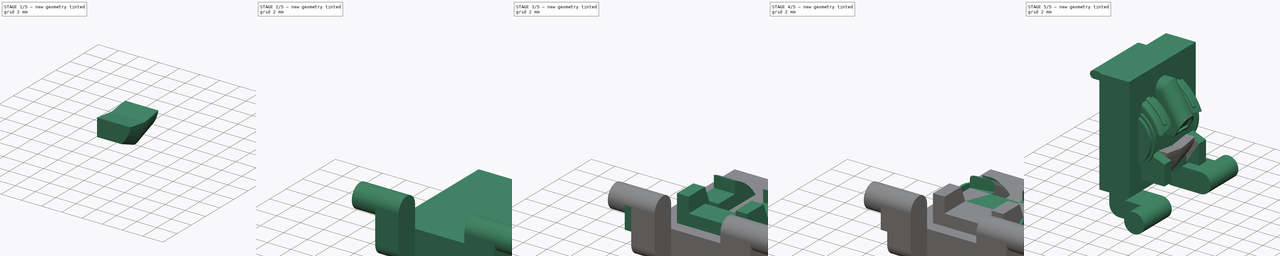
[diagram: build sequence overview — one tinted view per stage of 5, left to right]
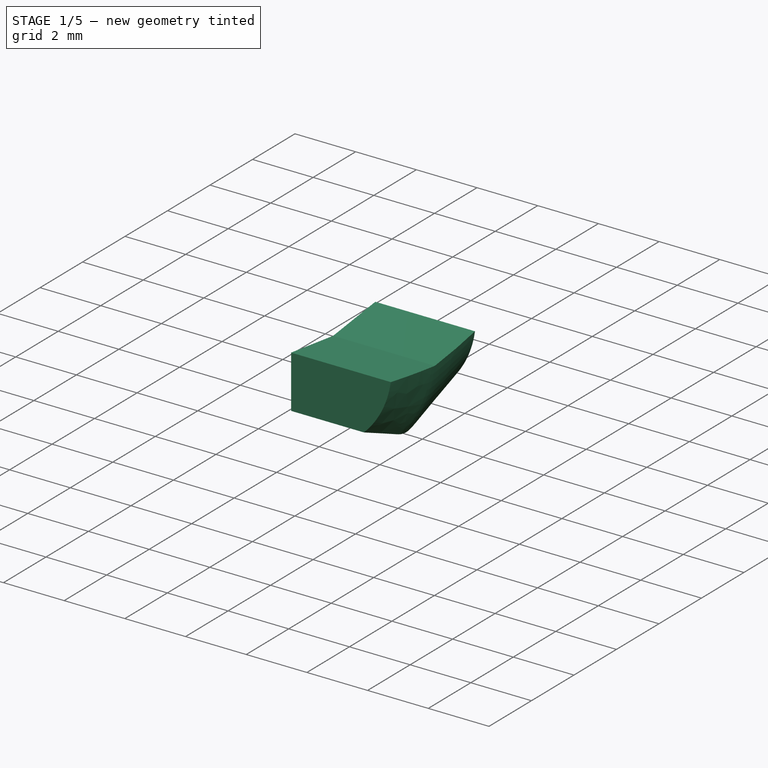
[diagram: stage 1 of 5 — iso view after this stage's code; geometry added in this stage tinted green]
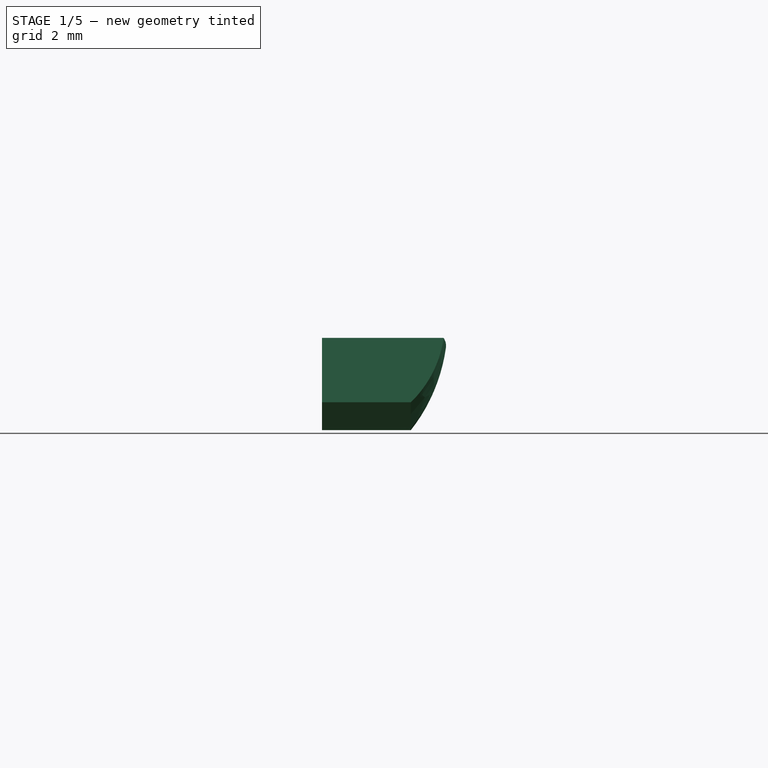
[diagram: stage 1 of 5 — front view after this stage's code; geometry added in this stage tinted green]
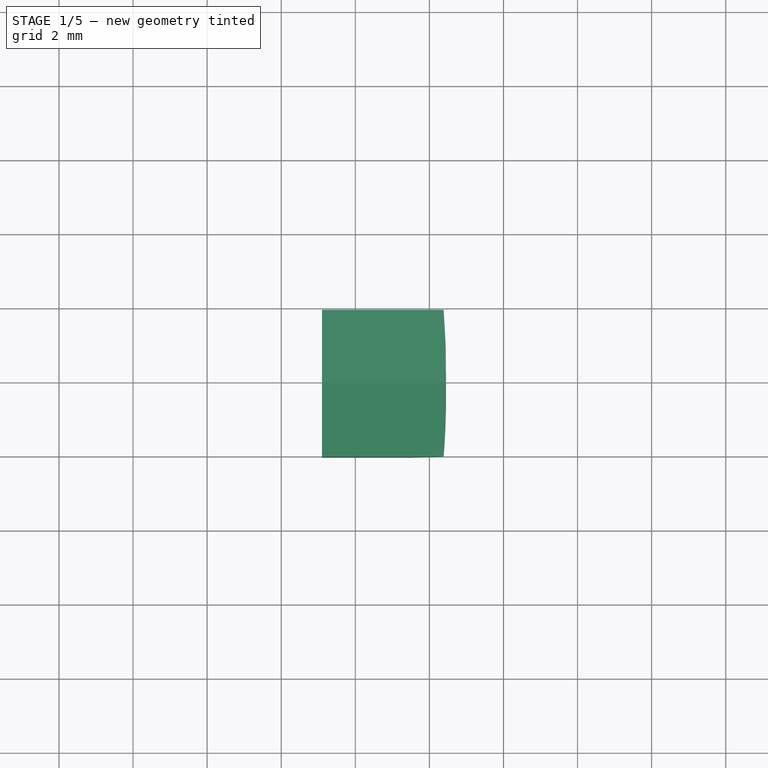
[diagram: stage 1 of 5 — top view after this stage's code; geometry added in this stage tinted green]
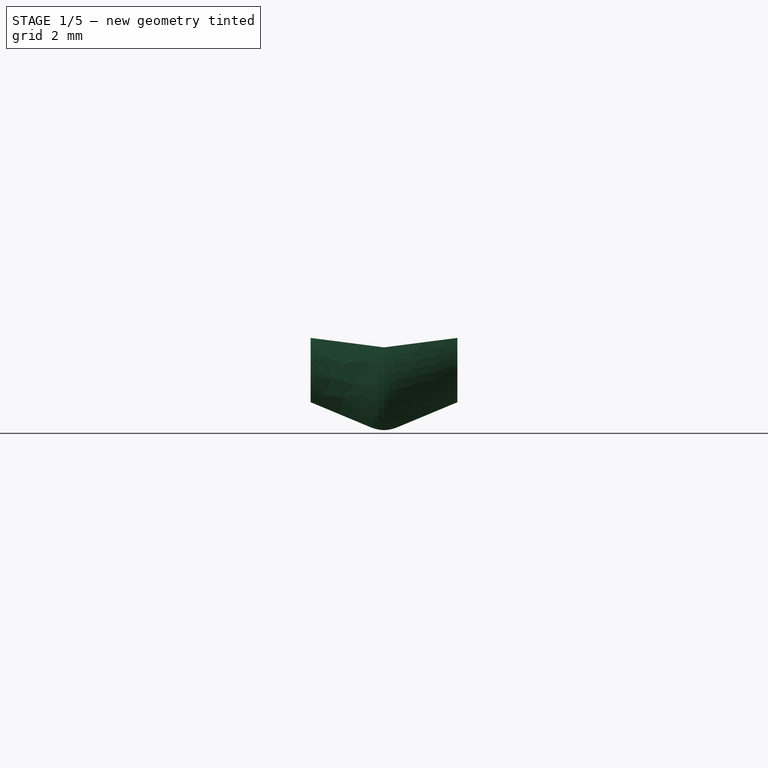
[diagram: stage 1 of 5 — right view after this stage's code; geometry added in this stage tinted green]
FCSTD DOCUMENT  (FreeCAD 1.0R39109 (Git))
Label: Head
License: All rights reserved
LicenseURL: https://en.wikipedia.org/wiki/All_rights_reserved
objects: Sketcher::SketchObject×43, PartDesign::Pad×21, PartDesign::Pocket×14, Part::FeaturePython×10, PartDesign::Fillet×4, PartDesign::Body×3, PartDesign::SubShapeBinder×3, Part::Extrusion×2, PartDesign::FeatureBase×2, PartDesign::Boolean×1
note: 227 computed .brp shape members not serialized (recipe doc carries the construction recipe); baked Part::Feature solids carry a one-line shape summary decoded from their .brp

FEATURE [PartDesign::Body] Body022  label="Main_Head"
  AllowCompound = false
  Group = -> [Sketch419,Pad245,Sketch420,Pocket192,Sketch421,Pad246,Sketch422,Pocket193,Sketch423,Pad247,Sketch424,Pocket194,Sketch425,Pad248,Sketch426,Pad249,Sketch427,Pad250,Sketch428,Pad251,Sketch,Pad,Sketch429,Pad252,Sketch430,Pad253,Sketch431,Pad254,Sketch432,Pad255,Sketch433,Pocket,Sketch434,Pocket195,Sketch435,Pad256,Sketch436,Pocket196,Sketch437,Pad257,Sketch438,Pad258,Fillet,Sketch439,Pad259,Sketch440,+17 more]
  Origin = -> Origin023
  Placement = pos=(-20.5,-4.85,13.7) rot=(0.58,0.58,0.58;2.0944rad)
  Tip = -> Pocket199
FEATURE [Sketcher::SketchObject] Sketch447
  ArcFitTolerance = 1e-06
  AttachmentOffset = pos=(-16.4,-0.05,19.55) rot=(0,0,1;0rad)
  AttachmentSupport = -> [XY_Plane]
  FullyConstrained = true
  MakeInternals = false
  MapMode = 5
  Placement = pos=(-16.4,-0.05,19.55) rot=(0,0,1;0rad)
  sketch-geometry (2):
    g0: ArcOfCircle CenterX=-19.1412 CenterY=1.53256 CenterZ=0 NormalX=0 NormalY=0 NormalZ=1 AngleXU=0 Radius=20 StartAngle=6.05714 EndAngle=6.20648
    g1: ArcOfCircle CenterX=-19.1412 CenterY=-1.53256 CenterZ=0 NormalX=0 NormalY=0 NormalZ=1 AngleXU=0 Radius=20 StartAngle=0.076703 EndAngle=0.226048
  constraints (9):
    c: DistanceY(g-1,g1) = 2.95
    c: DistanceY(g0,g-1) = 2.95
    c: DistanceX(g-1,g0) = 0.35
    c: DistanceX(g-1,g1) = 0.35
    c: Coincident(g0,g1)
    c: PointOnObject(g0,g-1)
    c: Radius(g1) = 20
    c: Radius(g0) = 20
    c: DistanceX(g-1,g0) = 0.8
FEATURE [Sketcher::SketchObject] Sketch448
  ArcFitTolerance = 1e-06
  AttachmentOffset = pos=(0,0,3) rot=(0,0,1;0rad)
  AttachmentSupport = -> [XZ_Plane]
  ExternalGeometry = -> [Sketch447]
  FullyConstrained = true
  MakeInternals = false
  MapMode = 5
  Placement = pos=(0,-3,7e-16) rot=(1,0,0;1.5708rad)
  sketch-geometry (3):
    g0: ArcOfCircle CenterX=-16.842 CenterY=18.5191 CenterZ=0 NormalX=0 NormalY=0 NormalZ=1 AngleXU=0 Radius=1.3 StartAngle=6.15276 EndAngle=7.19894
    g1: ArcOfCircle CenterX=-26.063 CenterY=19.7286 CenterZ=0 NormalX=0 NormalY=0 NormalZ=1 AngleXU=0 Radius=10.6 StartAngle=5.94882 EndAngle=6.15276
    g2: LineSegment [constr] StartX=-16.05 StartY=19.55 StartZ=0 EndX=-16.05 EndY=16.25 EndZ=0
  constraints (9):
    c: Coincident(g0,g-3)
    c: Tangent(g1,g0) = -1.5708
    c: Coincident(g2,g0)
    c: Coincident(g2,g1)
    c: Vertical(g2)
    c: DistanceY(g2,g2) = 3.3
    c: Radius(g0) = 1.3
    c: Radius(g1) = 10.6
    c: DistanceY(g0,g-3) = 1.2
FEATURE [Sketcher::SketchObject] Sketch449
  ArcFitTolerance = 1e-06
  AttachmentOffset = pos=(0,0,-2.9) rot=(0,0,1;0rad)
  AttachmentSupport = -> [XZ_Plane]
  ExternalGeometry = -> [Sketch448]
  FullyConstrained = true
  MakeInternals = false
  MapMode = 5
  Placement = pos=(0,2.9,-6e-16) rot=(1,0,0;1.5708rad)
  sketch-geometry (2):
    g0: ArcOfCircle CenterX=-16.842 CenterY=18.5191 CenterZ=0 NormalX=0 NormalY=0 NormalZ=1 AngleXU=0 Radius=1.3 StartAngle=6.15276 EndAngle=7.19894
    g1: ArcOfCircle CenterX=-26.063 CenterY=19.7286 CenterZ=0 NormalX=0 NormalY=0 NormalZ=1 AngleXU=0 Radius=10.6 StartAngle=5.94882 EndAngle=6.15276
  constraints (4):
    c: Coincident(g0,g-4)
    c: Tangent(g0,g-3) = -1.5708
    c: Coincident(g1,g0)
    c: Tangent(g1,g-4) = -1.5708
FEATURE [Sketcher::SketchObject] Sketch450
  ArcFitTolerance = 1e-06
  AttachmentOffset = pos=(0,0,16.25) rot=(0,0,1;0rad)
  AttachmentSupport = -> [XY_Plane]
  ExternalGeometry = -> [Sketch447]
  FullyConstrained = true
  MakeInternals = false
  MapMode = 5
  Placement = pos=(0,0,16.25) rot=(0,0,1;0rad)
  sketch-geometry (2):
    g0: ArcOfCircle CenterX=-45.8438 CenterY=-0.611639 CenterZ=0 NormalX=0 NormalY=0 NormalZ=1 AngleXU=0 Radius=30 StartAngle=0.0203894 EndAngle=0.117324
    g1: ArcOfCircle CenterX=-45.8459 CenterY=0.493063 CenterZ=0 NormalX=0 NormalY=0 NormalZ=1 AngleXU=0 Radius=30 StartAngle=6.16649 EndAngle=6.26675
  constraints (7):
    c: PointOnObject(g0,g-1)
    c: Coincident(g1,g0)
    c: Coincident(g1,g-4)
    c: Coincident(g0,g-3)
    c: DistanceX(g0,g0) = 0.2
    c: Radius(g0) = 30
    c: Radius(g1) = 30
FEATURE [Part::FeaturePython] JoinCurve  # WARN: FeaturePython — macro-defined, semantics opaque (R4)
  Active = false
  ApproxTolerance = 0.001
  Continuity = 5
  CornerBreak = false
  DegreeMax = 5
  DegreeMin = 3
  Edges = -> [Sketch448]
  ForceClosed = false
  ForceContact = true
  OffsetParameter = 0
  Parametrization = 0
  Rational = true
  Reverse = false
  Samples = 100
  StartOffset = 0
  Tolerance = 0.01
FEATURE [Part::FeaturePython] JoinCurve001  # WARN: FeaturePython — macro-defined, semantics opaque (R4)
  Active = false
  ApproxTolerance = 0.001
  Continuity = 5
  CornerBreak = false
  DegreeMax = 5
  DegreeMin = 3
  Edges = -> [Sketch449]
  ForceClosed = false
  ForceContact = true
  OffsetParameter = 0
  Parametrization = 0
  Rational = true
  Reverse = false
  Samples = 100
  StartOffset = 0
  Tolerance = 0.01
FEATURE [Part::FeaturePython] JoinCurve002  # WARN: FeaturePython — macro-defined, semantics opaque (R4)
  Active = false
  ApproxTolerance = 0.001
  Continuity = 5
  CornerBreak = false
  DegreeMax = 5
  DegreeMin = 3
  Edges = -> [Sketch450]
  ForceClosed = false
  ForceContact = true
  OffsetParameter = 0
  Parametrization = 0
  Rational = true
  Reverse = false
  Samples = 100
  StartOffset = 0
  Tolerance = 0.01
FEATURE [Part::FeaturePython] JoinCurve003  # WARN: FeaturePython — macro-defined, semantics opaque (R4)
  Active = false
  ApproxTolerance = 0.001
  Continuity = 5
  CornerBreak = false
  DegreeMax = 5
  DegreeMin = 3
  Edges = -> [Sketch447]
  ForceClosed = false
  ForceContact = true
  OffsetParameter = 0
  Parametrization = 0
  Rational = true
  Reverse = false
  Samples = 100
  StartOffset = 0
  Tolerance = 0.01
FEATURE [Part::FeaturePython] Gordon  # WARN: FeaturePython — macro-defined, semantics opaque (R4)
  FlipNormal = false
  MaxCtrlPts = 80
  Output = 0
  SamplesU = 16
  SamplesV = 16
  Sources = -> [JoinCurve,JoinCurve001,JoinCurve002,JoinCurve003]
  Tol2D = 1e-05
  Tol3D = 0.01
FEATURE [Part::Extrusion] Extrude
  Base = -> Gordon
  Dir = (1,0,0)
  DirMode = 0
  FaceMakerClass = Part::FaceMakerBullseye
  FaceMakerMode = 3
  LengthFwd = 4
  LengthRev = 0
  Reversed = true
  Solid = false
  Symmetric = false
FEATURE [PartDesign::FeatureBase] BaseFeature
  BaseFeature = -> Extrude
  Suppressed = false
FEATURE [Sketcher::SketchObject] Sketch451
  ArcFitTolerance = 1e-06
  AttachmentOffset = pos=(0,0,-21) rot=(0,0,1;0rad)
  AttachmentSupport = -> [YZ_Plane]
  FullyConstrained = false
  MakeInternals = false
  MapMode = 5
  Placement = pos=(-21,0,0) rot=(0.57735,0.57735,0.57735;2.0944rad)
  sketch-geometry (4):
    g0: LineSegment StartX=5.07487 StartY=20.2252 StartZ=0 EndX=-5.57249 EndY=20.2252 EndZ=0
    g1: LineSegment StartX=-5.57249 StartY=20.2252 StartZ=0 EndX=-5.57249 EndY=15.5389 EndZ=0
    g2: LineSegment StartX=-5.57249 StartY=15.5389 StartZ=0 EndX=5.07487 EndY=15.5389 EndZ=0
    g3: LineSegment StartX=5.07487 StartY=15.5389 StartZ=0 EndX=5.07487 EndY=20.2252 EndZ=0
  constraints (8):
    c: Coincident(g0,g1)
    c: Coincident(g1,g2)
    c: Coincident(g2,g3)
    c: Coincident(g3,g0)
    c: Horizontal(g0)
    c: Horizontal(g2)
    c: Vertical(g1)
    c: Vertical(g3)
FEATURE [PartDesign::Pocket] Pocket200
  BaseFeature = -> BaseFeature
  Direction = (-1,0,0)
  Length = 4.5
  Length2 = 5
  Profile = -> Sketch451
  ReferenceAxis = -> Sketch451 [N_Axis]
  Refine = true
  Reversed = true
  Suppressed = false
  Type = 0
FEATURE [Sketcher::SketchObject] Sketch452
  ArcFitTolerance = 1e-06
  AttachmentOffset = pos=(0,0,-14) rot=(0,0,1;0rad)
  AttachmentSupport = -> [YZ_Plane]
  FullyConstrained = true
  MakeInternals = false
  MapMode = 5
  Placement = pos=(-14,0,0) rot=(0.57735,0.57735,0.57735;2.0944rad)
  sketch-geometry (10):
    g0: LineSegment StartX=-1.1 StartY=19.8 StartZ=0 EndX=-1.1 EndY=18.35 EndZ=0
    g1: LineSegment StartX=-1.1 StartY=18.35 StartZ=0 EndX=1 EndY=18.35 EndZ=0
    g2: LineSegment StartX=1 StartY=18.35 StartZ=0 EndX=1 EndY=19.8 EndZ=0
    g3: LineSegment StartX=1 StartY=19.8 StartZ=0 EndX=-1.1 EndY=19.8 EndZ=0
    g4: LineSegment StartX=-1.1 StartY=19.6 StartZ=0 EndX=-3.1 EndY=19.15 EndZ=0
    g5: LineSegment StartX=-3.1 StartY=19.15 StartZ=0 EndX=-3.1 EndY=19.6 EndZ=0
    g6: LineSegment StartX=-3.1 StartY=19.6 StartZ=0 EndX=-1.1 EndY=19.6 EndZ=0
    g7: LineSegment StartX=1 StartY=19.6 StartZ=0 EndX=3 EndY=19.6 EndZ=0
    g8: LineSegment StartX=3 StartY=19.6 StartZ=0 EndX=3 EndY=19.15 EndZ=0
    g9: LineSegment StartX=3 StartY=19.15 StartZ=0 EndX=1 EndY=19.6 EndZ=0
  constraints (30):
    c: Coincident(g0,g1)
    c: Coincident(g1,g2)
    c: Coincident(g2,g3)
    c: Coincident(g3,g0)
    c: Vertical(g0)
    c: Vertical(g2)
    c: Horizontal(g1)
    c: Horizontal(g3)
    c: DistanceY(g0,g0) = 1.45
    c: DistanceY(g-1,g0) = 18.35
    c: DistanceX(g0,g-1) = 1.1
    c: DistanceX(g0,g2) = 2.1
    c: Coincident(g5,g4)
    c: Vertical(g5)
    c: Coincident(g6,g5)
    c: Coincident(g6,g4)
    c: Horizontal(g6)
    c: DistanceY(g5,g5) = 0.45
    c: DistanceX(g4,g0) = 0
    c: DistanceX(g6,g6) = 2
    c: DistanceY(g4,g0) = 0.2
    c: PointOnObject(g7,g2)
    c: Horizontal(g7)
    c: Coincident(g8,g7)
    c: Coincident(g9,g8)
    c: Coincident(g9,g7)
    c: Vertical(g8)
    c: DistanceY(g8,g8) = 0.45
    c: DistanceX(g7,g7) = 2
    c: DistanceY(g7,g2) = 0.2
FEATURE [PartDesign::Pocket] Pocket201
  BaseFeature = -> Pocket200
  Direction = (-1,0,0)
  Length = 5
  Length2 = 5
  Profile = -> Sketch452
  ReferenceAxis = -> Sketch452 [N_Axis]
  Refine = true
  Suppressed = false
  Type = 0
FEATURE [Sketcher::SketchObject] Sketch453
  ArcFitTolerance = 1e-06
  AttachmentOffset = pos=(0,0,-14) rot=(0,0,1;0rad)
  AttachmentSupport = -> [YZ_Plane]
  ExternalGeometry = -> [Pocket201]
  FullyConstrained = true
  MakeInternals = false
  MapMode = 5
  Placement = pos=(-14,0,0) rot=(0.57735,0.57735,0.57735;2.0944rad)
  sketch-geometry (6):
    g0: LineSegment StartX=-3 StartY=17.38 StartZ=0 EndX=-0.05 EndY=17 EndZ=0
    g1: LineSegment StartX=2.9 StartY=17.38 StartZ=0 EndX=-0.05 EndY=17 EndZ=0
    g2: LineSegment [constr] StartX=-3 StartY=17.38 StartZ=0 EndX=2.9 EndY=17.38 EndZ=0
    g3: LineSegment StartX=-3 StartY=17.38 StartZ=0 EndX=-3 EndY=15.16 EndZ=0
    g4: LineSegment StartX=-3 StartY=15.16 StartZ=0 EndX=2.9 EndY=15.16 EndZ=0
    g5: LineSegment StartX=2.9 StartY=17.38 StartZ=0 EndX=2.9 EndY=15.16 EndZ=0
  constraints (17):
    c: PointOnObject(g0,g-3)
    c: PointOnObject(g1,g-4)
    c: Coincident(g1,g0)
    c: DistanceX(g0,g-1) = 0.05
    c: Coincident(g2,g0)
    c: Coincident(g2,g1)
    c: Horizontal(g2)
    c: Coincident(g3,g0)
    c: Vertical(g3)
    c: Coincident(g4,g3)
    c: Horizontal(g4)
    c: Coincident(g5,g1)
    c: Coincident(g5,g4)
    c: Vertical(g5)
    c: DistanceY(g0,g0) = 0.38
    c: DistanceY(g3,g3) = 2.22
    c: DistanceY(g-1,g3) = 15.16
FEATURE [PartDesign::Pocket] Pocket202
  BaseFeature = -> Pocket201
  Direction = (-1,0,0)
  Length = 5
  Length2 = 5
  Profile = -> Sketch453
  ReferenceAxis = -> Sketch453 [N_Axis]
  Refine = true
  Suppressed = false
  Type = 0
FEATURE [PartDesign::Body] Body  label="Eyes"
  AllowCompound = false
  BaseFeature = -> Extrude
  Group = -> [BaseFeature,Sketch447,Sketch448,Sketch449,Sketch450,Sketch451,Pocket200,Sketch452,Pocket201,Sketch453,Pocket202]
  Origin = -> Origin
  Tip = -> Pocket202
FEATURE [PartDesign::SubShapeBinder] Binder
  BindCopyOnChange = 0
  BindMode = 2
  ClaimChildren = false
  Context = -> Body023 [Binder.]
  Fuse = false
  MakeFace = true
  OffsetFill = false
  OffsetIntersection = false
  OffsetJoinType = 0
  OffsetOpenResult = false
  PartialLoad = false
  Refine = true
  Relative = true
  _Version = 2
FEATURE [Sketcher::SketchObject] Sketch454
  ArcFitTolerance = 1e-06
  AttachmentSupport = -> [Binder]
  ExternalGeometry = -> [Binder]
  FullyConstrained = true
  MakeInternals = false
  MapMode = 5
  Placement = pos=(0,2.15327,16.7162) rot=(1,0,0;3.01349rad)
  sketch-geometry (1):
    g0: ArcOfCircle CenterX=-35.5613 CenterY=2.59098 CenterZ=0 NormalX=0 NormalY=0 NormalZ=1 AngleXU=0 Radius=20 StartAngle=6.26471 EndAngle=6.3648
  constraints (4):
    c: PointOnObject(g0,g-3)
    c: Coincident(g0,g-4)
    c: DistanceY(g0,g0) = 2
    c: Radius(g0) = 20
FEATURE [PartDesign::SubShapeBinder] Binder001
  BindCopyOnChange = 0
  BindMode = 0
  ClaimChildren = false
  Context = -> Body023 [Binder001.]
  Fuse = false
  MakeFace = true
  OffsetFill = false
  OffsetIntersection = false
  OffsetJoinType = 0
  OffsetOpenResult = false
  PartialLoad = false
  Refine = true
  Relative = true
  Support = -> [Body[Pocket202.Face13]]
  _Version = 2
FEATURE [Sketcher::SketchObject] Sketch455
  ArcFitTolerance = 1e-06
  AttachmentSupport = -> [Binder001]
  ExternalGeometry = -> [Binder001]
  FullyConstrained = true
  MakeInternals = false
  MapMode = 5
  Placement = pos=(0,-2.1549,16.7289) rot=(1,0,0;3.2697rad)
  sketch-geometry (1):
    g0: ArcOfCircle CenterX=-35.5612 CenterY=-2.49537 CenterZ=0 NormalX=0 NormalY=0 NormalZ=1 AngleXU=0 Radius=20 StartAngle=6.20175 EndAngle=6.30184
  constraints (4):
    c: Coincident(g0,g-3)
    c: PointOnObject(g0,g-3)
    c: DistanceY(g0,g0) = 2
    c: Radius(g0) = 20
FEATURE [PartDesign::SubShapeBinder] Binder002
  BindCopyOnChange = 0
  BindMode = 2
  ClaimChildren = false
  Context = -> Body023 [Binder002.]
  Fuse = false
  MakeFace = true
  OffsetFill = false
  OffsetIntersection = false
  OffsetJoinType = 0
  OffsetOpenResult = false
  PartialLoad = false
  Refine = true
  Relative = true
  _Version = 2
FEATURE [Sketcher::SketchObject] Sketch456
  ArcFitTolerance = 1e-06
  AttachmentSupport = -> [Binder002]
  ExternalGeometry = -> [Sketch454,Sketch455,Binder002]
  FullyConstrained = true
  MakeInternals = false
  MapMode = 5
  Placement = pos=(-16.5,0,-3.7e-15) rot=(0.57735,0.57735,0.57735;2.0944rad)
  sketch-geometry (8):
    g0: LineSegment StartX=-0.35 StartY=14.8 StartZ=0 EndX=-2.03361 EndY=15.5 EndZ=0
    g1: LineSegment StartX=0.25 StartY=14.8 StartZ=0 EndX=1.93361 EndY=15.5 EndZ=0
    g2: LineSegment [constr] StartX=-2.03361 StartY=15.5 StartZ=0 EndX=1.93361 EndY=15.5 EndZ=0
    g3: ArcOfCircle CenterX=-0.05 CenterY=15.6485 CenterZ=0 NormalX=0 NormalY=0 NormalZ=1 AngleXU=0 Radius=0.9 StartAngle=4.37255 EndAngle=5.05223
    g4: LineSegment [constr] StartX=0.25 StartY=14.8 StartZ=0 EndX=-0.35 EndY=14.8 EndZ=0
    g5: LineSegment [constr] StartX=-0.05 StartY=17 StartZ=0 EndX=-0.05 EndY=15.6485 EndZ=0
    g6: LineSegment [constr] StartX=-2.03361 StartY=15.5 StartZ=0 EndX=-2.03361 EndY=17.2555 EndZ=0
    g7: LineSegment [constr] StartX=1.93361 StartY=15.5 StartZ=0 EndX=1.93361 EndY=17.2555 EndZ=0
  constraints (22):
    c: Coincident(g2,g0)
    c: Coincident(g2,g1)
    c: Horizontal(g2)
    c: Coincident(g3,g0)
    c: Coincident(g3,g1)
    c: Coincident(g4,g1)
    c: Coincident(g4,g0)
    c: Horizontal(g4)
    c: DistanceY(g0,g0) = 0.7
    c: Radius(g3) = 0.9
    c: DistanceX(g-7,g-7) = 4
    c: DistanceY(g-7,g0) = 0.1
    c: Coincident(g5,g-4)
    c: Coincident(g5,g3)
    c: Vertical(g5)
    c: DistanceX(g4,g4) = 0.6
    c: Coincident(g6,g0)
    c: Coincident(g6,g-3)
    c: Vertical(g6)
    c: Coincident(g7,g1)
    c: Coincident(g7,g-4)
    c: Vertical(g7)
FEATURE [Sketcher::SketchObject] Sketch457
  ArcFitTolerance = 1e-06
  AttachmentOffset = pos=(0,0,2.034) rot=(0,0,1;0rad)
  AttachmentSupport = -> [XZ_Plane025]
  ExternalGeometry = -> [Sketch454,Binder002,Sketch456,Sketch455]
  FullyConstrained = false
  MakeInternals = false
  MapMode = 5
  Placement = pos=(0,-2.034,5e-16) rot=(1,0,0;1.5708rad)
  sketch-geometry (1):
    g0: ArcOfCircle CenterX=-18.586 CenterY=17.6561 CenterZ=0 NormalX=0 NormalY=0 NormalZ=1 AngleXU=0 Radius=3 StartAngle=5.48125 EndAngle=6.14249
  constraints (3):
    c: PointOnObject(g0,g-3)
    c: Coincident(g0,g-5)
    c: Radius(g0) = 3
FEATURE [Sketcher::SketchObject] Sketch458
  ArcFitTolerance = 1e-06
  AttachmentOffset = pos=(0,0,-1.93) rot=(0,0,1;0rad)
  AttachmentSupport = -> [XZ_Plane025]
  ExternalGeometry = -> [Sketch457]
  FullyConstrained = true
  MakeInternals = false
  MapMode = 5
  Placement = pos=(0,1.93,-4e-16) rot=(1,0,0;1.5708rad)
  sketch-geometry (1):
    g0: ArcOfCircle CenterX=-18.586 CenterY=17.6561 CenterZ=0 NormalX=0 NormalY=0 NormalZ=1 AngleXU=0 Radius=3 StartAngle=5.48125 EndAngle=6.14249
  constraints (2):
    c: Coincident(g0,g-3)
    c: Tangent(g0,g-3) = -1.5708
FEATURE [Part::FeaturePython] JoinCurve004  # WARN: FeaturePython — macro-defined, semantics opaque (R4)
  Active = false
  ApproxTolerance = 0.001
  Continuity = 5
  CornerBreak = false
  DegreeMax = 5
  DegreeMin = 3
  Edges = -> [Sketch457]
  ForceClosed = false
  ForceContact = true
  OffsetParameter = 0
  Parametrization = 0
  Rational = true
  Reverse = false
  Samples = 100
  StartOffset = 0
  Tolerance = 0.01
FEATURE [Part::FeaturePython] JoinCurve005  # WARN: FeaturePython — macro-defined, semantics opaque (R4)
  Active = false
  ApproxTolerance = 0.001
  Continuity = 5
  CornerBreak = false
  DegreeMax = 5
  DegreeMin = 3
  Edges = -> [Sketch458]
  ForceClosed = false
  ForceContact = true
  OffsetParameter = 0
  Parametrization = 0
  Rational = true
  Reverse = false
  Samples = 100
  StartOffset = 0
  Tolerance = 0.01
FEATURE [Part::FeaturePython] JoinCurve006  # WARN: FeaturePython — macro-defined, semantics opaque (R4)
  Active = false
  ApproxTolerance = 0.001
  Continuity = 5
  CornerBreak = false
  DegreeMax = 5
  DegreeMin = 3
  Edges = -> [Sketch454,Sketch455]
  ForceClosed = false
  ForceContact = true
  OffsetParameter = 0
  Parametrization = 0
  Rational = true
  Reverse = false
  Samples = 100
  StartOffset = 0
  Tolerance = 0.01
FEATURE [Part::FeaturePython] JoinCurve007  # WARN: FeaturePython — macro-defined, semantics opaque (R4)
  Active = false
  ApproxTolerance = 0.001
  Continuity = 5
  CornerBreak = false
  DegreeMax = 5
  DegreeMin = 3
  Edges = -> [Sketch456]
  ForceClosed = false
  ForceContact = true
  OffsetParameter = 0
  Parametrization = 0
  Rational = true
  Reverse = false
  Samples = 100
  StartOffset = 0
  Tolerance = 0.01
FEATURE [Part::FeaturePython] Gordon001  # WARN: FeaturePython — macro-defined, semantics opaque (R4)
  FlipNormal = false
  MaxCtrlPts = 80
  Output = 0
  SamplesU = 16
  SamplesV = 16
  Sources = -> [JoinCurve004,JoinCurve005,JoinCurve006,JoinCurve007]
  Tol2D = 1e-05
  Tol3D = 0.01
FEATURE [Part::Extrusion] Extrude001
  Base = -> Gordon001
  Dir = (1,0,0)
  DirMode = 0
  FaceMakerClass = Part::FaceMakerBullseye
  FaceMakerMode = 3
  LengthFwd = 4
  LengthRev = 0
  Reversed = true
  Solid = false
  Symmetric = false
FEATURE [PartDesign::FeatureBase] BaseFeature001
  BaseFeature = -> Extrude001
  Suppressed = false
FEATURE [Sketcher::SketchObject] Sketch459
  ArcFitTolerance = 1e-06
  AttachmentOffset = pos=(0,0,-21) rot=(0,0,1;0rad)
  AttachmentSupport = -> [YZ_Plane025]
  FullyConstrained = true
  MakeInternals = false
  MapMode = 5
  Placement = pos=(-21,0,0) rot=(0.57735,0.57735,0.57735;2.0944rad)
  sketch-geometry (4):
    g0: LineSegment StartX=3.25 StartY=17.7 StartZ=0 EndX=-3.35 EndY=17.7 EndZ=0
    g1: LineSegment StartX=-3.35 StartY=17.7 StartZ=0 EndX=-3.35 EndY=15.2 EndZ=0
    g2: LineSegment StartX=-3.35 StartY=15.2 StartZ=0 EndX=3.25 EndY=15.2 EndZ=0
    g3: LineSegment StartX=3.25 StartY=15.2 StartZ=0 EndX=3.25 EndY=17.7 EndZ=0
  constraints (12):
    c: Coincident(g0,g1)
    c: Coincident(g1,g2)
    c: Coincident(g2,g3)
    c: Coincident(g3,g0)
    c: Horizontal(g0)
    c: Horizontal(g2)
    c: Vertical(g1)
    c: Vertical(g3)
    c: DistanceY(g-1,g2) = 15.2
    c: DistanceX(g-1,g2) = 3.25
    c: DistanceX(g0,g0) = 6.6
    c: DistanceY(g1,g1) = 2.5
FEATURE [PartDesign::Pocket] Pocket203
  BaseFeature = -> BaseFeature001
  Direction = (-1,0,0)
  Length = 2.1
  Length2 = 5
  Profile = -> Sketch459
  ReferenceAxis = -> Sketch459 [N_Axis]
  Refine = true
  Reversed = true
  Suppressed = false
  Type = 0
FEATURE [Sketcher::SketchObject] Sketch460
  ArcFitTolerance = 1e-06
  AttachmentSupport = -> [Pocket203]
  FullyConstrained = false
  MakeInternals = false
  MapMode = 5
  Placement = pos=(-18.9,0,0) rot=(0.57735,-0.57735,-0.57735;2.0944rad)
  sketch-geometry (4):
    g0: LineSegment StartX=-2.60903 StartY=15.7616 StartZ=0 EndX=-2.60903 EndY=14.05 EndZ=0
    g1: LineSegment StartX=-2.60903 StartY=14.05 StartZ=0 EndX=2.9254 EndY=14.05 EndZ=0
    g2: LineSegment StartX=2.9254 StartY=14.05 StartZ=0 EndX=2.9254 EndY=15.7616 EndZ=0
    g3: LineSegment StartX=2.9254 StartY=15.7616 StartZ=0 EndX=-2.60903 EndY=15.7616 EndZ=0
  constraints (8):
    c: Coincident(g0,g1)
    c: Coincident(g1,g2)
    c: Coincident(g2,g3)
    c: Coincident(g3,g0)
    c: Vertical(g0)
    c: Vertical(g2)
    c: Horizontal(g1)
    c: Horizontal(g3)
FEATURE [PartDesign::Pocket] Pocket204
  BaseFeature = -> Pocket203
  Direction = (1,0,0)
  Length = 5
  Length2 = 5
  Profile = -> Sketch460
  ReferenceAxis = -> Sketch460 [N_Axis]
  Refine = true
  Reversed = true
  Suppressed = false
  Type = 0
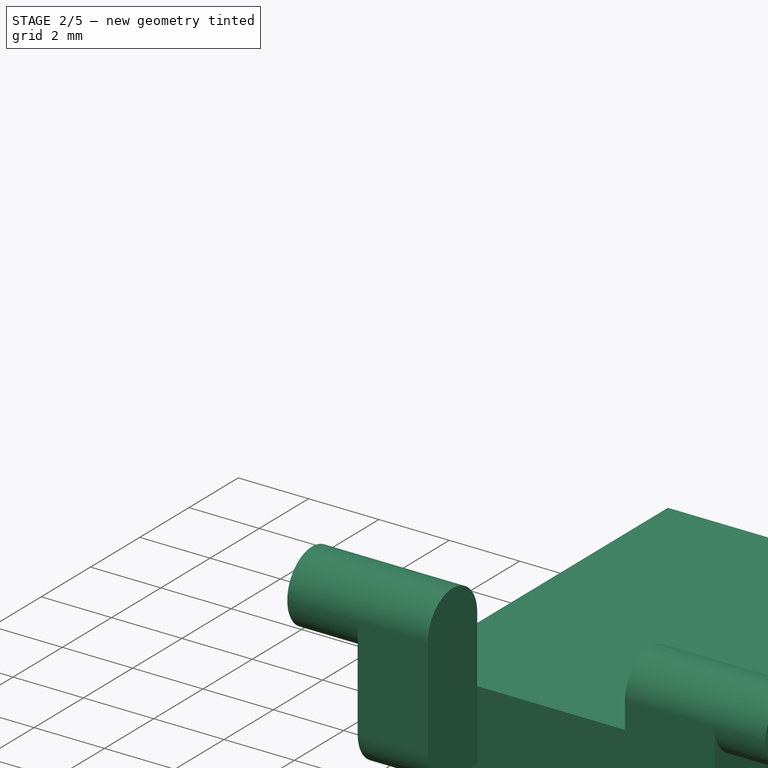
[diagram: stage 2 of 5 — iso view after this stage's code; geometry added in this stage tinted green]
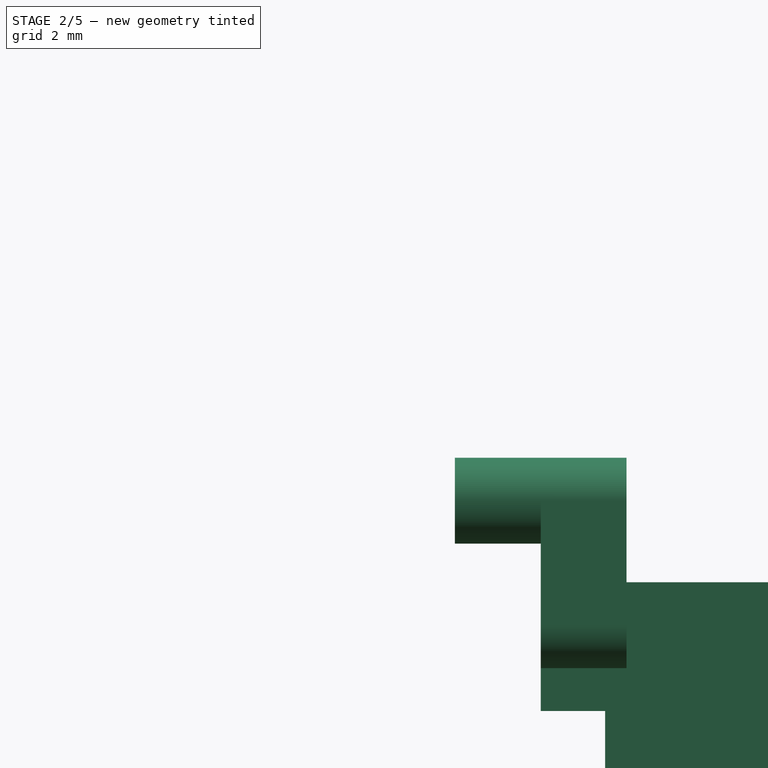
[diagram: stage 2 of 5 — front view after this stage's code; geometry added in this stage tinted green]
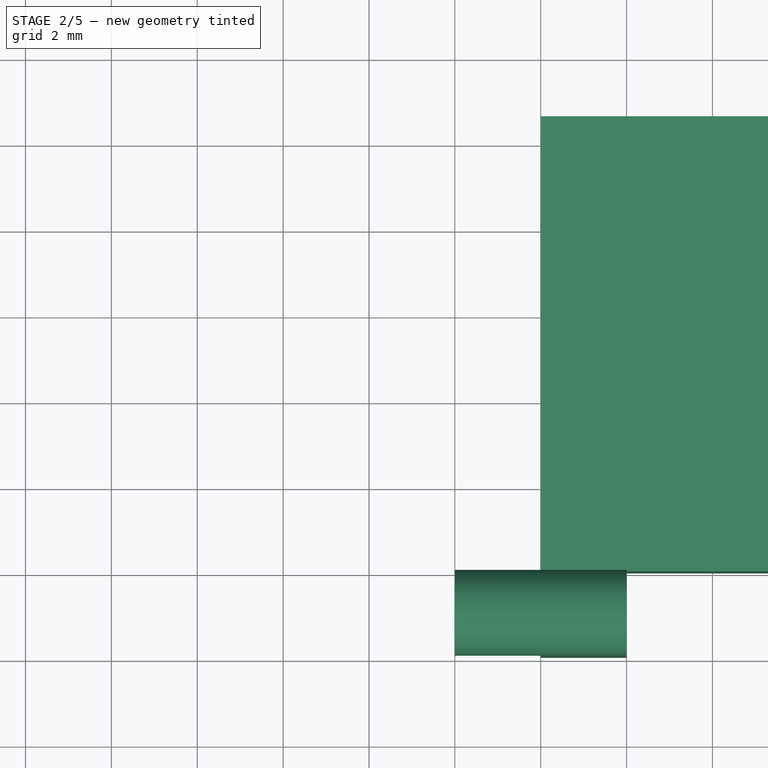
[diagram: stage 2 of 5 — top view after this stage's code; geometry added in this stage tinted green]
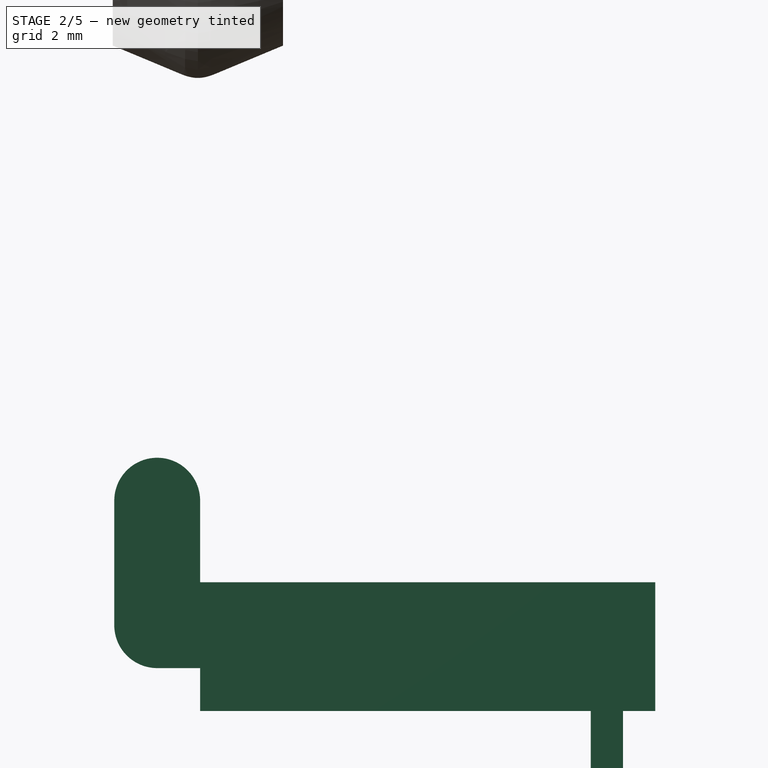
[diagram: stage 2 of 5 — right view after this stage's code; geometry added in this stage tinted green]
FEATURE [Sketcher::SketchObject] Sketch419
  ArcFitTolerance = 1e-06
  AttachmentSupport = -> [XY_Plane023]
  FullyConstrained = true
  MakeInternals = false
  MapMode = 5
  sketch-geometry (4):
    g0: LineSegment StartX=0 StartY=0 StartZ=0 EndX=9.6 EndY=0 EndZ=0
    g1: LineSegment StartX=9.6 StartY=0 StartZ=0 EndX=9.6 EndY=10.6 EndZ=0
    g2: LineSegment StartX=9.6 StartY=10.6 StartZ=0 EndX=0 EndY=10.6 EndZ=0
    g3: LineSegment StartX=0 StartY=10.6 StartZ=0 EndX=0 EndY=0 EndZ=0
  constraints (11):
    c: Coincident(g0,g1)
    c: Coincident(g1,g2)
    c: Coincident(g2,g3)
    c: Coincident(g3,g0)
    c: Horizontal(g0)
    c: Horizontal(g2)
    c: Vertical(g1)
    c: Vertical(g3)
    c: Coincident(g0,g-1)
    c: DistanceX(g2,g2) = 9.6
    c: DistanceY(g3,g3) = 10.6
FEATURE [PartDesign::Pad] Pad245
  Direction = (0,0,1)
  Length = 3
  Length2 = 10
  Profile = -> Sketch419
  ReferenceAxis = -> Sketch419 [N_Axis]
  Refine = true
  Suppressed = false
  Type = 0
FEATURE [Sketcher::SketchObject] Sketch420
  ArcFitTolerance = 1e-06
  AttachmentSupport = -> [Pad245]
  ExternalGeometry = -> [Pad245]
  FullyConstrained = true
  MakeInternals = false
  MapMode = 5
  Placement = pos=(0,0,0) rot=(1,0,0;3.14159rad)
  sketch-geometry (4):
    g0: LineSegment StartX=1.5 StartY=-1.5 StartZ=0 EndX=1.5 EndY=-9.1 EndZ=0
    g1: LineSegment StartX=1.5 StartY=-9.1 StartZ=0 EndX=8.1 EndY=-9.1 EndZ=0
    g2: LineSegment StartX=8.1 StartY=-9.1 StartZ=0 EndX=8.1 EndY=-1.5 EndZ=0
    g3: LineSegment StartX=8.1 StartY=-1.5 StartZ=0 EndX=1.5 EndY=-1.5 EndZ=0
  constraints (12):
    c: Coincident(g0,g1)
    c: Coincident(g1,g2)
    c: Coincident(g2,g3)
    c: Coincident(g3,g0)
    c: Vertical(g0)
    c: Vertical(g2)
    c: Horizontal(g1)
    c: Horizontal(g3)
    c: DistanceY(g0,g-1) = 1.5
    c: DistanceY(g-4,g0) = 1.5
    c: DistanceX(g1,g-4) = 1.5
    c: DistanceX(g-1,g0) = 1.5
FEATURE [PartDesign::Pocket] Pocket192
  BaseFeature = -> Pad245
  Direction = (0,0,1)
  Length = 1.5
  Length2 = 5
  Profile = -> Sketch420
  ReferenceAxis = -> Sketch420 [N_Axis]
  Refine = true
  Suppressed = false
  Type = 0
FEATURE [Sketcher::SketchObject] Sketch421
  ArcFitTolerance = 1e-06
  AttachmentSupport = -> [Pocket192]
  ExternalGeometry = -> [Pocket192]
  FullyConstrained = true
  MakeInternals = false
  MapMode = 5
  Placement = pos=(0,0,0) rot=(1,0,0;3.14159rad)
  sketch-geometry (4):
    g0: LineSegment StartX=1.5 StartY=-9.1 StartZ=0 EndX=1.5 EndY=-9.85 EndZ=0
    g1: LineSegment StartX=1.5 StartY=-9.85 StartZ=0 EndX=8.1 EndY=-9.85 EndZ=0
    g2: LineSegment StartX=8.1 StartY=-9.85 StartZ=0 EndX=8.1 EndY=-9.1 EndZ=0
    g3: LineSegment StartX=8.1 StartY=-9.1 StartZ=0 EndX=1.5 EndY=-9.1 EndZ=0
  constraints (10):
    c: Coincident(g0,g1)
    c: Coincident(g1,g2)
    c: Coincident(g2,g3)
    c: Coincident(g3,g0)
    c: Vertical(g0)
    c: Vertical(g2)
    c: Horizontal(g1)
    c: Coincident(g0,g-3)
    c: Coincident(g2,g-3)
    c: DistanceY(g2,g2) = 0.75
FEATURE [PartDesign::Pad] Pad246
  BaseFeature = -> Pocket192
  Direction = (0,0,-1)
  Length = 2
  Length2 = 10
  Profile = -> Sketch421
  ReferenceAxis = -> Sketch421 [N_Axis]
  Refine = true
  Suppressed = false
  Type = 0
FEATURE [Sketcher::SketchObject] Sketch422
  ArcFitTolerance = 1e-06
  AttachmentSupport = -> [Pad246]
  ExternalGeometry = -> [Pad246]
  FullyConstrained = true
  MakeInternals = false
  MapMode = 5
  Placement = pos=(1.5,0,0) rot=(0.57735,-0.57735,-0.57735;2.0944rad)
  sketch-geometry (4):
    g0: LineSegment StartX=-9.85 StartY=-1.625 StartZ=0 EndX=-9.85 EndY=-2 EndZ=0
    g1: LineSegment StartX=-9.1 StartY=-1.625 StartZ=0 EndX=-9.1 EndY=-2 EndZ=0
    g2: LineSegment StartX=-9.1 StartY=-2 StartZ=0 EndX=-9.85 EndY=-2 EndZ=0
    g3: ArcOfCircle CenterX=-9.475 CenterY=-1.625 CenterZ=0 NormalX=0 NormalY=0 NormalZ=1 AngleXU=0 Radius=0.375 StartAngle=3.14159 EndAngle=6.28319
  constraints (11):
    c: PointOnObject(g0,g-4)
    c: Coincident(g0,g-5)
    c: PointOnObject(g1,g-3)
    c: Coincident(g1,g-5)
    c: Coincident(g2,g1)
    c: Coincident(g2,g0)
    c: Coincident(g3,g0)
    c: Coincident(g3,g1)
    c: DistanceY(g0,g0) = 0.375
    c: Tangent(g2,g3)
    c: DistanceY(g1,g1) = 0.375
FEATURE [PartDesign::Pocket] Pocket193
  BaseFeature = -> Pad246
  Direction = (1,0,0)
  Length = 7
  Length2 = 5
  Profile = -> Sketch422
  ReferenceAxis = -> Sketch422 [N_Axis]
  Refine = true
  Suppressed = false
  Type = 0
FEATURE [Sketcher::SketchObject] Sketch423
  ArcFitTolerance = 1e-06
  AttachmentSupport = -> [Pocket193]
  ExternalGeometry = -> [Pocket193]
  FullyConstrained = true
  MakeInternals = false
  MapMode = 5
  Placement = pos=(9.6,0,0) rot=(0.57735,0.57735,0.57735;2.0944rad)
  sketch-geometry (6):
    g0: LineSegment StartX=0 StartY=3 StartZ=0 EndX=0 EndY=1 EndZ=0
    g1: LineSegment StartX=0 StartY=3 StartZ=0 EndX=0 EndY=4.9 EndZ=0
    g2: ArcOfCircle CenterX=-1 CenterY=4.9 CenterZ=0 NormalX=0 NormalY=0 NormalZ=1 AngleXU=0 Radius=1 StartAngle=3e-16 EndAngle=3.14159
    g3: LineSegment StartX=-2 StartY=4.9 StartZ=0 EndX=-2 EndY=2 EndZ=0
    g4: ArcOfCircle CenterX=-1 CenterY=2 CenterZ=0 NormalX=0 NormalY=0 NormalZ=1 AngleXU=0 Radius=1 StartAngle=3.14159 EndAngle=4.71239
    g5: LineSegment StartX=-1 StartY=1 StartZ=0 EndX=0 EndY=1 EndZ=0
  constraints (19):
    c: Coincident(g0,g-3)
    c: PointOnObject(g0,g-3)
    c: DistanceY(g0,g0) = 2
    c: Coincident(g2,g1)
    c: Coincident(g3,g2)
    c: Coincident(g4,g3)
    c: Coincident(g5,g4)
    c: Coincident(g5,g0)
    c: Horizontal(g5)
    c: Diameter(g2) = 2
    c: Diameter(g4) = 2
    c: Coincident(g1,g0)
    c: DistanceX(g4,g4) = 0
    c: DistanceY(g4,g3) = 0
    c: Vertical(g1)
    c: Vertical(g3)
    c: DistanceY(g2,g2) = 0
    c: DistanceY(g2,g1) = 0
    c: DistanceY(g4,g2) = 2.9
FEATURE [PartDesign::Pad] Pad247
  BaseFeature = -> Pocket193
  Direction = (1,0,0)
  Length = 9.6
  Length2 = 10
  Profile = -> Sketch423
  ReferenceAxis = -> Sketch423 [N_Axis]
  Refine = true
  Reversed = true
  Suppressed = false
  Type = 0
FEATURE [Sketcher::SketchObject] Sketch424
  ArcFitTolerance = 1e-06
  AttachmentSupport = -> [Pad247]
  ExternalGeometry = -> [Pad247]
  FullyConstrained = true
  MakeInternals = false
  MapMode = 5
  Placement = pos=(0,-2,0) rot=(1,0,0;1.5708rad)
  sketch-geometry (4):
    g0: LineSegment StartX=2 StartY=7 StartZ=0 EndX=2 EndY=0 EndZ=0
    g1: LineSegment StartX=2 StartY=0 StartZ=0 EndX=7.6 EndY=0 EndZ=0
    g2: LineSegment StartX=7.6 StartY=0 StartZ=0 EndX=7.6 EndY=7 EndZ=0
    g3: LineSegment StartX=7.6 StartY=7 StartZ=0 EndX=2 EndY=7 EndZ=0
  constraints (13):
    c: Coincident(g0,g1)
    c: Coincident(g1,g2)
    c: Coincident(g2,g3)
    c: Coincident(g3,g0)
    c: Vertical(g0)
    c: Vertical(g2)
    c: Horizontal(g1)
    c: Horizontal(g3)
    c: DistanceX(g-4,g-3) = 9.6
    c: DistanceX(g-4,g0) = 2
    c: DistanceX(g2,g-3) = 2
    c: DistanceY(g0,g0) = 7
    c: PointOnObject(g0,g-1)
FEATURE [PartDesign::Pocket] Pocket194
  BaseFeature = -> Pad247
  Direction = (0,1,-2e-16)
  Length = 2
  Length2 = 5
  Profile = -> Sketch424
  ReferenceAxis = -> Sketch424 [N_Axis]
  Refine = true
  Suppressed = false
  Type = 0
FEATURE [Sketcher::SketchObject] Sketch425
  ArcFitTolerance = 1e-06
  AttachmentSupport = -> [Pocket194]
  ExternalGeometry = -> [Pocket194]
  FullyConstrained = true
  MakeInternals = false
  MapMode = 5
  Placement = pos=(0,0,0) rot=(0.57735,-0.57735,-0.57735;2.0944rad)
  sketch-geometry (1):
    g0: Circle CenterX=1 CenterY=4.9 CenterZ=0 NormalX=0 NormalY=0 NormalZ=1 AngleXU=0 Radius=1
  constraints (2):
    c: Coincident(g0,g-3)
    c: Equal(g0,g-3)
FEATURE [PartDesign::Pad] Pad248
  BaseFeature = -> Pocket194
  Direction = (-1,0,0)
  Length = 2
  Length2 = 10
  Profile = -> Sketch425
  ReferenceAxis = -> Sketch425 [N_Axis]
  Refine = true
  Suppressed = false
  Type = 0
FEATURE [Sketcher::SketchObject] Sketch426
  ArcFitTolerance = 1e-06
  AttachmentSupport = -> [Pad248]
  ExternalGeometry = -> [Pad248]
  FullyConstrained = true
  MakeInternals = false
  MapMode = 5
  Placement = pos=(9.6,0,0) rot=(0.57735,0.57735,0.57735;2.0944rad)
  sketch-geometry (1):
    g0: Circle CenterX=-1 CenterY=4.9 CenterZ=0 NormalX=0 NormalY=0 NormalZ=1 AngleXU=0 Radius=1
  constraints (2):
    c: Coincident(g0,g-3)
    c: Equal(g0,g-3)
FEATURE [PartDesign::Pad] Pad249
  BaseFeature = -> Pad248
  Direction = (1,0,0)
  Length = 2
  Length2 = 10
  Profile = -> Sketch426
  ReferenceAxis = -> Sketch426 [N_Axis]
  Refine = true
  Suppressed = false
  Type = 0
FEATURE [Sketcher::SketchObject] Sketch427
  ArcFitTolerance = 1e-06
  AttachmentSupport = -> [Pad249]
  ExternalGeometry = -> [Pad249]
  FullyConstrained = true
  MakeInternals = false
  MapMode = 5
  Placement = pos=(9.6,0,0) rot=(0.57735,0.57735,0.57735;2.0944rad)
  sketch-geometry (4):
    g0: ArcOfCircle CenterX=-1 CenterY=4.9 CenterZ=0 NormalX=0 NormalY=0 NormalZ=1 AngleXU=0 Radius=1 StartAngle=3.14159 EndAngle=6.28319
    g1: LineSegment StartX=0 StartY=4.9 StartZ=0 EndX=0 EndY=3 EndZ=0
    g2: LineSegment StartX=0 StartY=3 StartZ=0 EndX=-2 EndY=3 EndZ=0
    g3: LineSegment StartX=-2 StartY=3 StartZ=0 EndX=-2 EndY=4.9 EndZ=0
  constraints (9):
    c: Coincident(g0,g-5)
    c: Tangent(g0,g-4) = -1.5708
    c: Coincident(g1,g-4)
    c: Coincident(g1,g-3)
    c: Coincident(g2,g1)
    c: PointOnObject(g2,g-5)
    c: Horizontal(g2)
    c: Coincident(g3,g2)
    c: Coincident(g3,g0)
FEATURE [PartDesign::Pad] Pad250
  BaseFeature = -> Pad249
  Direction = (1,0,0)
  Length = 0.55
  Length2 = 10
  Profile = -> Sketch427
  ReferenceAxis = -> Sketch427 [N_Axis]
  Refine = true
  Suppressed = false
  Type = 0
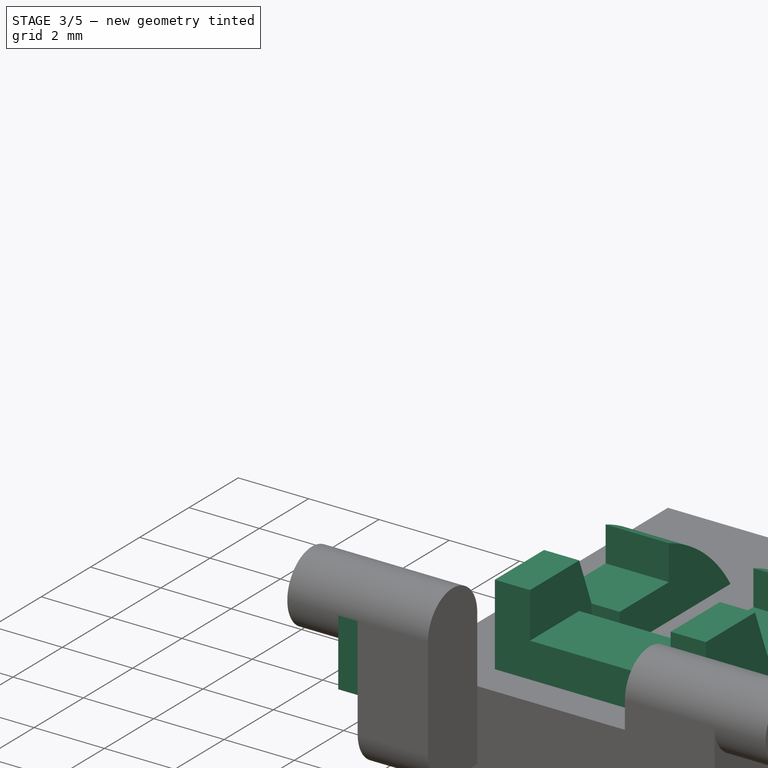
[diagram: stage 3 of 5 — iso view after this stage's code; geometry added in this stage tinted green]
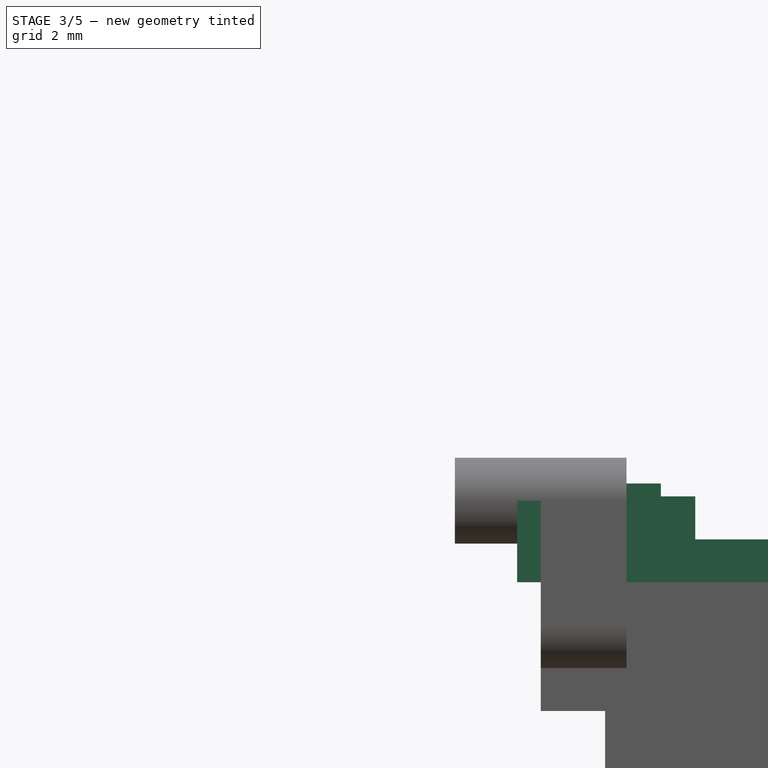
[diagram: stage 3 of 5 — front view after this stage's code; geometry added in this stage tinted green]
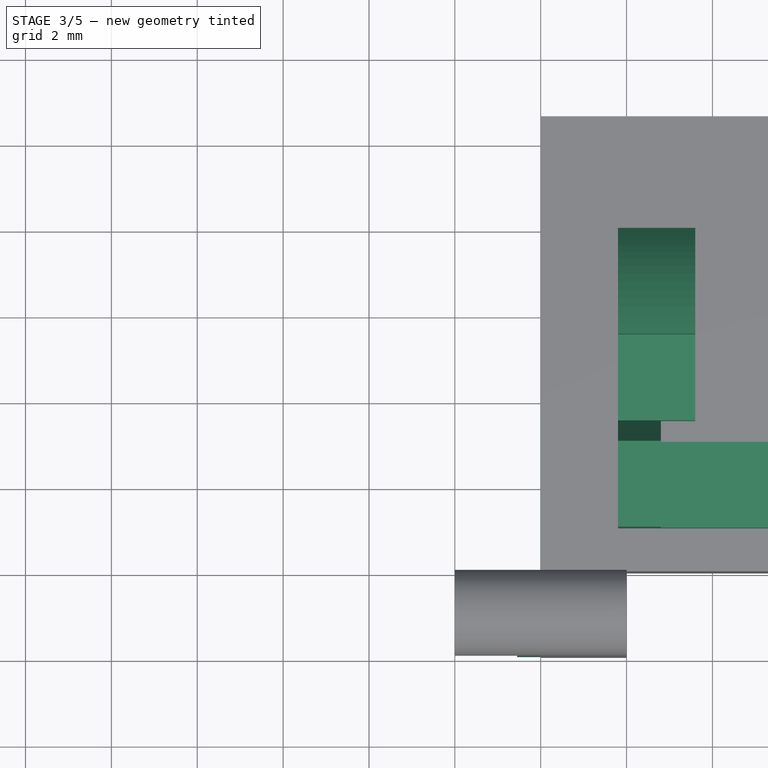
[diagram: stage 3 of 5 — top view after this stage's code; geometry added in this stage tinted green]
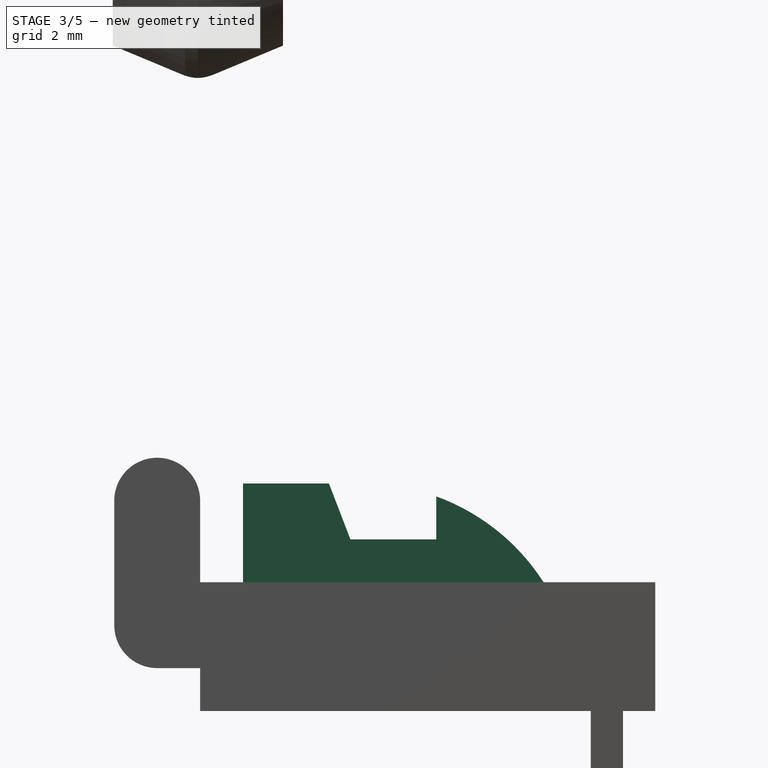
[diagram: stage 3 of 5 — right view after this stage's code; geometry added in this stage tinted green]
FEATURE [Sketcher::SketchObject] Sketch428
  ArcFitTolerance = 1e-06
  AttachmentSupport = -> [Pad250]
  ExternalGeometry = -> [Pad250]
  FullyConstrained = true
  MakeInternals = false
  MapMode = 5
  Placement = pos=(0,0,0) rot=(0.57735,-0.57735,-0.57735;2.0944rad)
  sketch-geometry (4):
    g0: LineSegment StartX=0 StartY=4.9 StartZ=0 EndX=0 EndY=3 EndZ=0
    g1: LineSegment StartX=0 StartY=3 StartZ=0 EndX=2 EndY=3 EndZ=0
    g2: LineSegment StartX=2 StartY=3 StartZ=0 EndX=2 EndY=4.9 EndZ=0
    g3: ArcOfCircle CenterX=1 CenterY=4.9 CenterZ=0 NormalX=0 NormalY=0 NormalZ=1 AngleXU=0 Radius=1 StartAngle=3.14159 EndAngle=6.28319
  constraints (10):
    c: Coincident(g0,g-5)
    c: Coincident(g0,g-4)
    c: Coincident(g1,g0)
    c: PointOnObject(g1,g-3)
    c: Horizontal(g1)
    c: Coincident(g3,g2)
    c: Coincident(g3,g0)
    c: Tangent(g3,g-5)
    c: Coincident(g-5,g2)
    c: Coincident(g2,g1)
FEATURE [PartDesign::Pad] Pad251
  BaseFeature = -> Pad250
  Direction = (-1,0,0)
  Length = 0.55
  Length2 = 10
  Profile = -> Sketch428
  ReferenceAxis = -> Sketch428 [N_Axis]
  Refine = true
  Suppressed = false
  Type = 0
FEATURE [Sketcher::SketchObject] Sketch
  ArcFitTolerance = 1e-06
  AttachmentSupport = -> [Pad251]
  ExternalGeometry = -> [Pad251]
  FullyConstrained = true
  MakeInternals = false
  MapMode = 5
  Placement = pos=(0,0,3) rot=(0,0,1;0rad)
  sketch-geometry (4):
    g0: LineSegment StartX=1.8 StartY=3 StartZ=0 EndX=1.8 EndY=1 EndZ=0
    g1: LineSegment StartX=1.8 StartY=1 StartZ=0 EndX=7.8 EndY=1 EndZ=0
    g2: LineSegment StartX=7.8 StartY=1 StartZ=0 EndX=7.8 EndY=3 EndZ=0
    g3: LineSegment StartX=7.8 StartY=3 StartZ=0 EndX=1.8 EndY=3 EndZ=0
  constraints (13):
    c: Coincident(g0,g1)
    c: Coincident(g1,g2)
    c: Coincident(g2,g3)
    c: Coincident(g3,g0)
    c: Vertical(g0)
    c: Vertical(g2)
    c: Horizontal(g1)
    c: Horizontal(g3)
    c: DistanceX(g3,g3) = 6
    c: DistanceX(g-1,g-3) = 9.6
    c: DistanceX(g-1,g0) = 1.8
    c: DistanceY(g-1,g0) = 1
    c: DistanceY(g0,g0) = 2
FEATURE [PartDesign::Pad] Pad
  BaseFeature = -> Pad251
  Direction = (0,0,1)
  Length = 1
  Length2 = 10
  Profile = -> Sketch
  ReferenceAxis = -> Sketch [N_Axis]
  Refine = true
  Suppressed = false
  Type = 0
FEATURE [Sketcher::SketchObject] Sketch429
  ArcFitTolerance = 1e-06
  AttachmentSupport = -> [Pad]
  ExternalGeometry = -> [Pad]
  FullyConstrained = true
  MakeInternals = false
  MapMode = 5
  Placement = pos=(0,0,4) rot=(0,0,1;0rad)
  sketch-geometry (8):
    g0: LineSegment StartX=1.8 StartY=3 StartZ=0 EndX=1.8 EndY=1 EndZ=0
    g1: LineSegment StartX=1.8 StartY=1 StartZ=0 EndX=2.8 EndY=1 EndZ=0
    g2: LineSegment StartX=2.8 StartY=1 StartZ=0 EndX=2.8 EndY=3 EndZ=0
    g3: LineSegment StartX=2.8 StartY=3 StartZ=0 EndX=1.8 EndY=3 EndZ=0
    g4: LineSegment StartX=7.8 StartY=3 StartZ=0 EndX=6.8 EndY=3 EndZ=0
    g5: LineSegment StartX=6.8 StartY=3 StartZ=0 EndX=6.8 EndY=1 EndZ=0
    g6: LineSegment StartX=6.8 StartY=1 StartZ=0 EndX=7.8 EndY=1 EndZ=0
    g7: LineSegment StartX=7.8 StartY=1 StartZ=0 EndX=7.8 EndY=3 EndZ=0
  constraints (22):
    c: Coincident(g0,g1)
    c: Coincident(g1,g2)
    c: Coincident(g2,g3)
    c: Coincident(g3,g0)
    c: Vertical(g0)
    c: Vertical(g2)
    c: Horizontal(g1)
    c: Horizontal(g3)
    c: Coincident(g0,g-3)
    c: PointOnObject(g1,g-4)
    c: Coincident(g4,g5)
    c: Coincident(g5,g6)
    c: Coincident(g6,g7)
    c: Coincident(g7,g4)
    c: Horizontal(g4)
    c: Horizontal(g6)
    c: Vertical(g5)
    c: Vertical(g7)
    c: Coincident(g4,g-3)
    c: PointOnObject(g5,g-4)
    c: DistanceX(g3,g3) = 1
    c: DistanceX(g4,g4) = 1
FEATURE [PartDesign::Pad] Pad252
  BaseFeature = -> Pad
  Direction = (0,0,1)
  Length = 1.3
  Length2 = 10
  Profile = -> Sketch429
  ReferenceAxis = -> Sketch429 [N_Axis]
  Refine = true
  Suppressed = false
  Type = 0
FEATURE [Sketcher::SketchObject] Sketch430
  ArcFitTolerance = 1e-06
  AttachmentSupport = -> [Pad252]
  ExternalGeometry = -> [Pad252]
  FullyConstrained = true
  MakeInternals = false
  MapMode = 5
  Placement = pos=(7.8,0,0) rot=(0.57735,0.57735,0.57735;2.0944rad)
  sketch-geometry (4):
    g0: LineSegment StartX=3 StartY=5.3 StartZ=0 EndX=3 EndY=3 EndZ=0
    g1: LineSegment StartX=3 StartY=3 StartZ=0 EndX=3.5 EndY=3 EndZ=0
    g2: LineSegment StartX=3.5 StartY=3 StartZ=0 EndX=3.5 EndY=4 EndZ=0
    g3: LineSegment StartX=3.5 StartY=4 StartZ=0 EndX=3 EndY=5.3 EndZ=0
  constraints (10):
    c: Coincident(g0,g-3)
    c: Coincident(g0,g-3)
    c: Coincident(g1,g0)
    c: Horizontal(g1)
    c: Coincident(g2,g1)
    c: Vertical(g2)
    c: Coincident(g3,g2)
    c: Coincident(g3,g0)
    c: DistanceX(g1,g1) = 0.5
    c: DistanceY(g2,g2) = 1
FEATURE [PartDesign::Pad] Pad253
  BaseFeature = -> Pad252
  Direction = (1,0,0)
  Length = 1
  Length2 = 10
  Profile = -> Sketch430
  ReferenceAxis = -> Sketch430 [N_Axis]
  Refine = true
  Reversed = true
  Suppressed = false
  Type = 0
FEATURE [Sketcher::SketchObject] Sketch431
  ArcFitTolerance = 1e-06
  AttachmentSupport = -> [Pad253]
  ExternalGeometry = -> [Pad253]
  FullyConstrained = true
  MakeInternals = false
  MapMode = 5
  Placement = pos=(1.8,0,0) rot=(0.57735,-0.57735,-0.57735;2.0944rad)
  sketch-geometry (4):
    g0: LineSegment StartX=-3 StartY=5.3 StartZ=0 EndX=-3 EndY=3 EndZ=0
    g1: LineSegment StartX=-3 StartY=3 StartZ=0 EndX=-3.5 EndY=3 EndZ=0
    g2: LineSegment StartX=-3.5 StartY=3 StartZ=0 EndX=-3.5 EndY=4 EndZ=0
    g3: LineSegment StartX=-3.5 StartY=4 StartZ=0 EndX=-3 EndY=5.3 EndZ=0
  constraints (8):
    c: Coincident(g0,g-4)
    c: Coincident(g0,g-3)
    c: Coincident(g1,g0)
    c: Coincident(g1,g-5)
    c: Coincident(g2,g1)
    c: Coincident(g2,g-5)
    c: Coincident(g3,g2)
    c: Coincident(g3,g0)
FEATURE [PartDesign::Pad] Pad254
  BaseFeature = -> Pad253
  Direction = (-1,0,0)
  Length = 1
  Length2 = 10
  Profile = -> Sketch431
  ReferenceAxis = -> Sketch431 [N_Axis]
  Refine = true
  Reversed = true
  Suppressed = false
  Type = 0
FEATURE [Sketcher::SketchObject] Sketch432
  ArcFitTolerance = 1e-06
  AttachmentSupport = -> [Pad254]
  ExternalGeometry = -> [Pad254]
  FullyConstrained = true
  MakeInternals = false
  MapMode = 5
  Placement = pos=(0,0,3) rot=(0,0,1;0rad)
  sketch-geometry (8):
    g0: LineSegment StartX=1.8 StartY=8 StartZ=0 EndX=1.8 EndY=3.5 EndZ=0
    g1: LineSegment StartX=1.8 StartY=3.5 StartZ=0 EndX=3.6 EndY=3.5 EndZ=0
    g2: LineSegment StartX=3.6 StartY=3.5 StartZ=0 EndX=3.6 EndY=8 EndZ=0
    g3: LineSegment StartX=3.6 StartY=8 StartZ=0 EndX=1.8 EndY=8 EndZ=0
    g4: LineSegment StartX=6 StartY=8 StartZ=0 EndX=6 EndY=3.5 EndZ=0
    g5: LineSegment StartX=6 StartY=3.5 StartZ=0 EndX=7.8 EndY=3.5 EndZ=0
    g6: LineSegment StartX=7.8 StartY=3.5 StartZ=0 EndX=7.8 EndY=8 EndZ=0
    g7: LineSegment StartX=7.8 StartY=8 StartZ=0 EndX=6 EndY=8 EndZ=0
  constraints (22):
    c: Coincident(g0,g1)
    c: Coincident(g1,g2)
    c: Coincident(g2,g3)
    c: Coincident(g3,g0)
    c: Vertical(g0)
    c: Vertical(g2)
    c: Horizontal(g1)
    c: Horizontal(g3)
    c: Coincident(g4,g5)
    c: Coincident(g5,g6)
    c: Coincident(g6,g7)
    c: Coincident(g7,g4)
    c: Vertical(g4)
    c: Vertical(g6)
    c: Horizontal(g5)
    c: Horizontal(g7)
    c: DistanceX(g7,g7) = 1.8
    c: DistanceX(g3,g3) = 1.8
    c: Coincident(g0,g-6)
    c: Coincident(g5,g-5)
    c: DistanceY(g0,g-4) = 2.6
    c: DistanceY(g6,g-3) = 2.6
FEATURE [PartDesign::Pad] Pad255
  BaseFeature = -> Pad254
  Direction = (0,0,1)
  Length = 2
  Length2 = 10
  Profile = -> Sketch432
  ReferenceAxis = -> Sketch432 [N_Axis]
  Refine = true
  Suppressed = false
  Type = 0
FEATURE [Sketcher::SketchObject] Sketch433
  ArcFitTolerance = 1e-06
  AttachmentSupport = -> [Pad255]
  ExternalGeometry = -> [Pad255]
  FullyConstrained = true
  MakeInternals = false
  MapMode = 5
  Placement = pos=(1.8,0,0) rot=(0.57735,-0.57735,-0.57735;2.0944rad)
  sketch-geometry (3):
    g0: ArcOfCircle CenterX=-3.79093 CenterY=0.301162 CenterZ=0 NormalX=0 NormalY=0 NormalZ=1 AngleXU=0 Radius=5 StartAngle=1.91964 EndAngle=2.57143
    g1: LineSegment StartX=-5.5 StartY=5 StartZ=0 EndX=-8 EndY=5 EndZ=0
    g2: LineSegment StartX=-8 StartY=5 StartZ=0 EndX=-8 EndY=3 EndZ=0
  constraints (8):
    c: Coincident(g0,g-3)
    c: PointOnObject(g0,g-4)
    c: Coincident(g1,g0)
    c: Coincident(g1,g-4)
    c: Coincident(g2,g1)
    c: Coincident(g2,g-3)
    c: DistanceX(g1,g1) = 2.5
    c: Radius(g0) = 5
FEATURE [PartDesign::Pocket] Pocket
  BaseFeature = -> Pad255
  Direction = (1,0,0)
  Length = 6
  Length2 = 5
  Profile = -> Sketch433
  ReferenceAxis = -> Sketch433 [N_Axis]
  Refine = true
  Suppressed = false
  Type = 0
FEATURE [Sketcher::SketchObject] Sketch434
  ArcFitTolerance = 1e-06
  AttachmentSupport = -> [Pocket]
  ExternalGeometry = -> [Pocket]
  FullyConstrained = true
  MakeInternals = false
  MapMode = 5
  Placement = pos=(0,0,5) rot=(0,0,1;0rad)
  sketch-geometry (4):
    g0: LineSegment StartX=1.8 StartY=5.5 StartZ=0 EndX=1.8 EndY=3.5 EndZ=0
    g1: LineSegment StartX=1.8 StartY=3.5 StartZ=0 EndX=7.8 EndY=3.5 EndZ=0
    g2: LineSegment StartX=7.8 StartY=3.5 StartZ=0 EndX=7.8 EndY=5.5 EndZ=0
    g3: LineSegment StartX=7.8 StartY=5.5 StartZ=0 EndX=1.8 EndY=5.5 EndZ=0
  constraints (10):
    c: Coincident(g0,g1)
    c: Coincident(g1,g2)
    c: Coincident(g2,g3)
    c: Coincident(g3,g0)
    c: Vertical(g0)
    c: Vertical(g2)
    c: Horizontal(g1)
    c: Horizontal(g3)
    c: Coincident(g0,g-4)
    c: Coincident(g1,g-3)
FEATURE [PartDesign::Pocket] Pocket195
  BaseFeature = -> Pocket
  Direction = (0,0,-1)
  Length = 1
  Length2 = 5
  Profile = -> Sketch434
  ReferenceAxis = -> Sketch434 [N_Axis]
  Refine = true
  Suppressed = false
  Type = 0
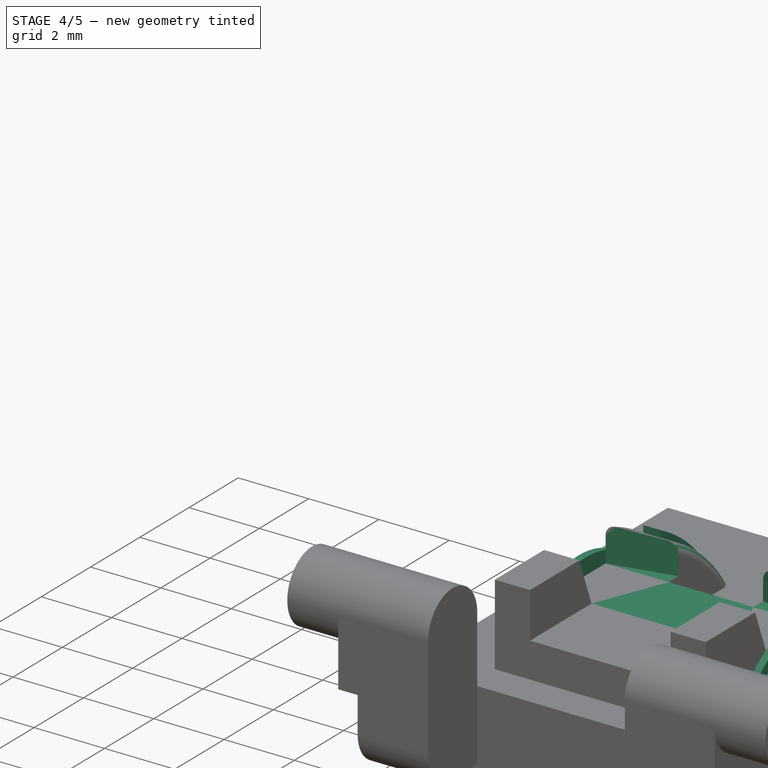
[diagram: stage 4 of 5 — iso view after this stage's code; geometry added in this stage tinted green]
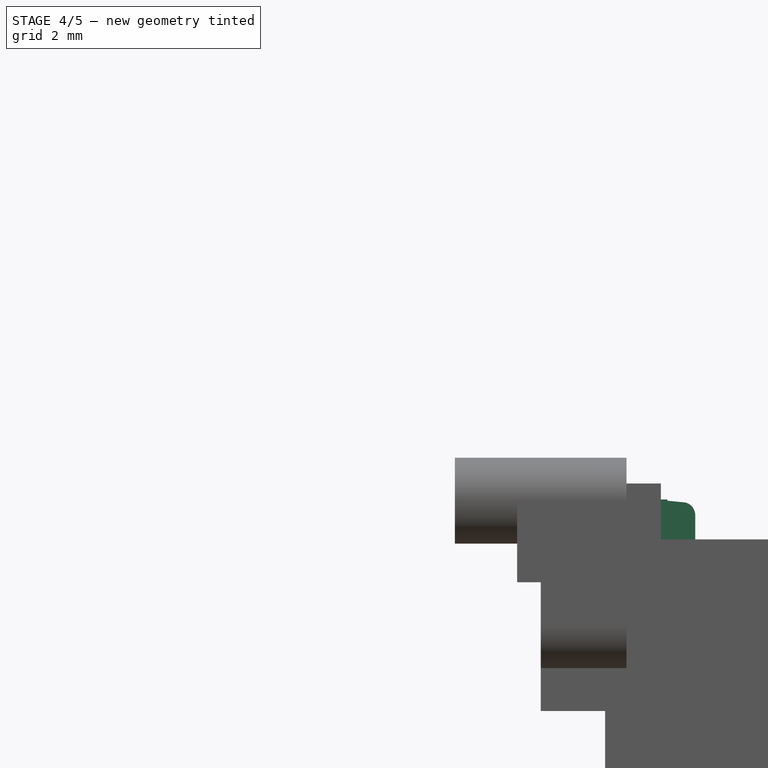
[diagram: stage 4 of 5 — front view after this stage's code; geometry added in this stage tinted green]
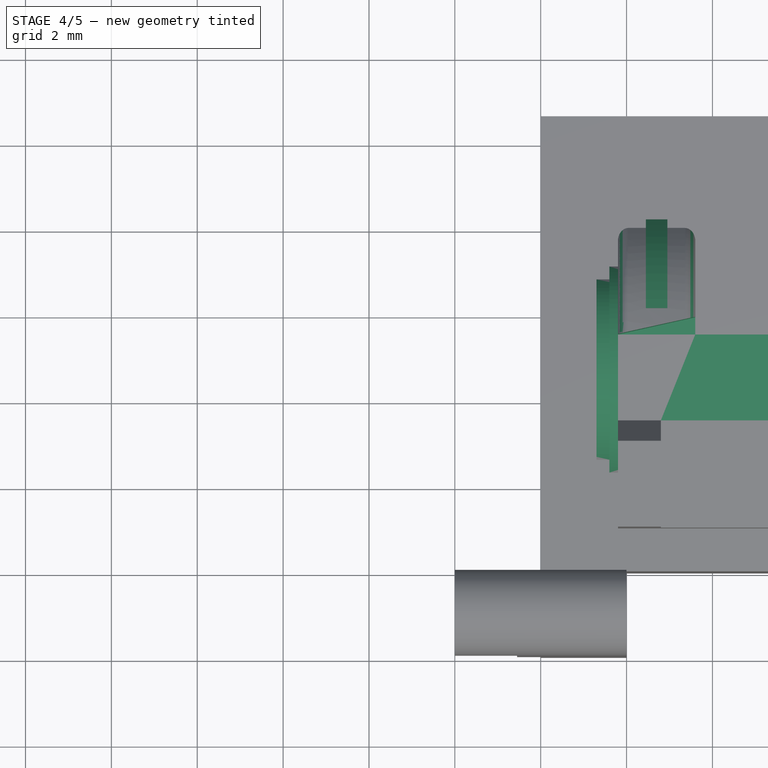
[diagram: stage 4 of 5 — top view after this stage's code; geometry added in this stage tinted green]
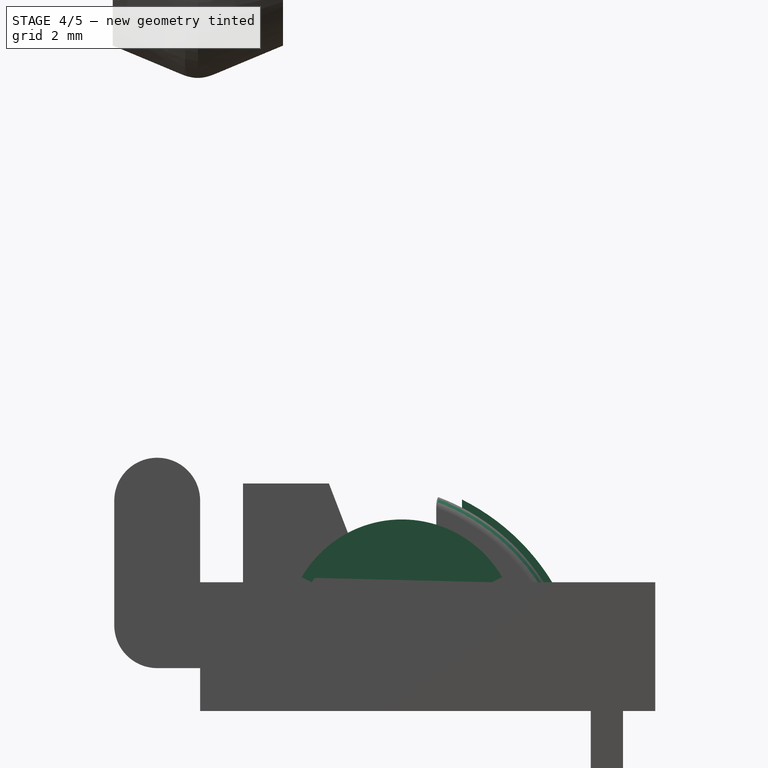
[diagram: stage 4 of 5 — right view after this stage's code; geometry added in this stage tinted green]
FEATURE [Sketcher::SketchObject] Sketch435
  ArcFitTolerance = 1e-06
  AttachmentSupport = -> [Pocket195]
  ExternalGeometry = -> [Pocket195]
  FullyConstrained = true
  MakeInternals = false
  MapMode = 5
  Placement = pos=(0,0,3) rot=(0,0,1;0rad)
  sketch-geometry (8):
    g0: LineSegment StartX=3.6 StartY=5.5 StartZ=0 EndX=6 EndY=5.5 EndZ=0
    g1: LineSegment StartX=6 StartY=5.5 StartZ=0 EndX=6 EndY=3.5 EndZ=0
    g2: LineSegment StartX=6 StartY=3.5 StartZ=0 EndX=6.8 EndY=3.5 EndZ=0
    g3: LineSegment StartX=6.8 StartY=3.5 StartZ=0 EndX=6.8 EndY=3 EndZ=0
    g4: LineSegment StartX=6.8 StartY=3 StartZ=0 EndX=2.8 EndY=3 EndZ=0
    g5: LineSegment StartX=2.8 StartY=3 StartZ=0 EndX=2.8 EndY=3.5 EndZ=0
    g6: LineSegment StartX=2.8 StartY=3.5 StartZ=0 EndX=3.6 EndY=3.5 EndZ=0
    g7: LineSegment StartX=3.6 StartY=3.5 StartZ=0 EndX=3.6 EndY=5.5 EndZ=0
  constraints (16):
    c: Coincident(g0,g-4)
    c: Coincident(g0,g-3)
    c: Coincident(g1,g0)
    c: Coincident(g1,g-3)
    c: Coincident(g2,g1)
    c: Coincident(g2,g-7)
    c: Coincident(g3,g2)
    c: Coincident(g3,g-7)
    c: Coincident(g4,g3)
    c: Coincident(g4,g-6)
    c: Coincident(g5,g4)
    c: Coincident(g5,g-6)
    c: Coincident(g6,g5)
    c: Coincident(g6,g-4)
    c: Coincident(g7,g6)
    c: Coincident(g7,g0)
FEATURE [PartDesign::Pad] Pad256
  BaseFeature = -> Pocket195
  Direction = (0,0,1)
  Length = 1
  Length2 = 10
  Profile = -> Sketch435
  ReferenceAxis = -> Sketch435 [N_Axis]
  Refine = true
  Suppressed = false
  Type = 0
FEATURE [Sketcher::SketchObject] Sketch436
  ArcFitTolerance = 1e-06
  AttachmentSupport = -> [Pad256]
  ExternalGeometry = -> [Pad256]
  FullyConstrained = true
  MakeInternals = false
  MapMode = 5
  Placement = pos=(0,0,5.3) rot=(0,0,1;0rad)
  sketch-geometry (6):
    g0: LineSegment StartX=7.8 StartY=5.5 StartZ=0 EndX=6 EndY=5.5 EndZ=0
    g1: LineSegment StartX=7.8 StartY=5.5 StartZ=0 EndX=6 EndY=5.9 EndZ=0
    g2: LineSegment StartX=6 StartY=5.9 StartZ=0 EndX=6 EndY=5.5 EndZ=0
    g3: LineSegment StartX=3.6 StartY=5.5 StartZ=0 EndX=1.8 EndY=5.5 EndZ=0
    g4: LineSegment StartX=1.8 StartY=5.5 StartZ=0 EndX=3.6 EndY=5.9 EndZ=0
    g5: LineSegment StartX=3.6 StartY=5.9 StartZ=0 EndX=3.6 EndY=5.5 EndZ=0
  constraints (14):
    c: Coincident(g0,g-3)
    c: Coincident(g0,g-5)
    c: Coincident(g1,g0)
    c: PointOnObject(g1,g-5)
    c: Coincident(g2,g1)
    c: Coincident(g2,g0)
    c: Coincident(g3,g-6)
    c: Coincident(g3,g-4)
    c: Coincident(g4,g3)
    c: PointOnObject(g4,g-6)
    c: Coincident(g5,g4)
    c: Coincident(g5,g3)
    c: DistanceY(g2,g2) = 0.4
    c: DistanceY(g5,g5) = 0.4
FEATURE [PartDesign::Pocket] Pocket196
  BaseFeature = -> Pad256
  Direction = (0,0,-1)
  Length = 1.3
  Length2 = 5
  Profile = -> Sketch436
  ReferenceAxis = -> Sketch436 [N_Axis]
  Refine = true
  Suppressed = false
  Type = 0
FEATURE [Sketcher::SketchObject] Sketch437
  ArcFitTolerance = 1e-06
  AttachmentSupport = -> [Pocket196]
  ExternalGeometry = -> [Pocket196]
  FullyConstrained = true
  MakeInternals = false
  MapMode = 5
  Placement = pos=(7.8,0,0) rot=(0.57735,0.57735,0.57735;2.0944rad)
  sketch-geometry (4):
    g0: ArcOfCircle CenterX=4.7 CenterY=1.7625 CenterZ=0 NormalX=0 NormalY=0 NormalZ=1 AngleXU=0 Radius=2.4375 StartAngle=0.532504 EndAngle=2.60909
    g1: LineSegment [constr] StartX=4.7 StartY=4.2 StartZ=0 EndX=6.8 EndY=4.2 EndZ=0
    g2: LineSegment [constr] StartX=6.8 StartY=3 StartZ=0 EndX=6.8 EndY=4.2 EndZ=0
    g3: LineSegment StartX=2.6 StartY=3 StartZ=0 EndX=6.8 EndY=3 EndZ=0
  constraints (12):
    c: PointOnObject(g0,g-3)
    c: PointOnObject(g0,g-3)
    c: DistanceX(g0,g0) = 4.2
    c: DistanceX(g0,g-3) = 1.2
    c: Horizontal(g1)
    c: Coincident(g2,g1)
    c: Vertical(g2)
    c: DistanceY(g2,g2) = 1.2
    c: Coincident(g2,g0)
    c: Tangent(g1,g0) = 1.5708
    c: Coincident(g3,g0)
    c: Coincident(g3,g0)
FEATURE [PartDesign::Pad] Pad257
  BaseFeature = -> Pocket196
  Direction = (1,0,0)
  Length = 0.5
  Length2 = 10
  Profile = -> Sketch437
  ReferenceAxis = -> Sketch437 [N_Axis]
  Refine = true
  Suppressed = false
  Type = 0
FEATURE [Sketcher::SketchObject] Sketch438
  ArcFitTolerance = 1e-06
  AttachmentSupport = -> [Pad257]
  ExternalGeometry = -> [Pad257]
  FullyConstrained = true
  MakeInternals = false
  MapMode = 5
  Placement = pos=(1.8,0,0) rot=(0.57735,-0.57735,-0.57735;2.0944rad)
  sketch-geometry (2):
    g0: ArcOfCircle CenterX=-4.7 CenterY=1.7625 CenterZ=0 NormalX=0 NormalY=0 NormalZ=1 AngleXU=0 Radius=2.4375 StartAngle=0.532504 EndAngle=2.60909
    g1: LineSegment StartX=-6.8 StartY=3 StartZ=0 EndX=-2.6 EndY=3 EndZ=0
  constraints (7):
    c: PointOnObject(g0,g-4)
    c: PointOnObject(g0,g-4)
    c: PointOnObject(g-3,g0)
    c: Tangent(g-3,g0) = -1.5708
    c: Coincident(g1,g0)
    c: PointOnObject(g1,g0)
    c: Horizontal(g1)
FEATURE [PartDesign::Pad] Pad258
  BaseFeature = -> Pad257
  Direction = (-1,0,0)
  Length = 0.5
  Length2 = 10
  Profile = -> Sketch438
  ReferenceAxis = -> Sketch438 [N_Axis]
  Refine = true
  Suppressed = false
  Type = 0
FEATURE [PartDesign::Fillet] Fillet
  Base = -> Pad258 [Edge102,Edge132,Edge125,Edge124]
  BaseFeature = -> Pad258
  Radius = 0.25
  Refine = true
  SupportTransform = false
  Suppressed = false
  UseAllEdges = false
FEATURE [Sketcher::SketchObject] Sketch439
  ArcFitTolerance = 1e-06
  AttachmentSupport = -> [Fillet]
  ExternalGeometry = -> [Fillet]
  FullyConstrained = true
  MakeInternals = false
  MapMode = 5
  Placement = pos=(1.8,0,0) rot=(0.57735,-0.57735,-0.57735;2.0944rad)
  sketch-geometry (2):
    g0: ArcOfCircle CenterX=-4.7 CenterY=1.7625 CenterZ=0 NormalX=0 NormalY=0 NormalZ=1 AngleXU=0 Radius=2.70026 StartAngle=0.476069 EndAngle=2.66552
    g1: LineSegment StartX=-7.1 StartY=3 StartZ=0 EndX=-2.3 EndY=3 EndZ=0
  constraints (7):
    c: PointOnObject(g0,g-3)
    c: PointOnObject(g0,g-4)
    c: DistanceX(g0,g-3) = 0.3
    c: Coincident(g0,g-5)
    c: Coincident(g1,g0)
    c: PointOnObject(g1,g0)
    c: Horizontal(g1)
FEATURE [PartDesign::Pad] Pad259
  BaseFeature = -> Fillet
  Direction = (-1,0,0)
  Length = 0.2
  Length2 = 10
  Profile = -> Sketch439
  ReferenceAxis = -> Sketch439 [N_Axis]
  Refine = true
  Suppressed = false
  Type = 0
FEATURE [Sketcher::SketchObject] Sketch440
  ArcFitTolerance = 1e-06
  AttachmentSupport = -> [Pad259]
  ExternalGeometry = -> [Pad259]
  FullyConstrained = true
  MakeInternals = false
  MapMode = 5
  Placement = pos=(7.8,0,0) rot=(0.57735,0.57735,0.57735;2.0944rad)
  sketch-geometry (2):
    g0: ArcOfCircle CenterX=4.7 CenterY=1.7625 CenterZ=0 NormalX=0 NormalY=0 NormalZ=1 AngleXU=0 Radius=2.70026 StartAngle=0.476069 EndAngle=2.66552
    g1: LineSegment StartX=2.3 StartY=3 StartZ=0 EndX=7.1 EndY=3 EndZ=0
  constraints (5):
    c: Coincident(g0,g-5)
    c: Coincident(g0,g-5)
    c: Tangent(g0,g-3)
    c: Coincident(g1,g0)
    c: Coincident(g1,g-5)
FEATURE [PartDesign::Pad] Pad260
  BaseFeature = -> Pad259
  Direction = (1,0,0)
  Length = 0.2
  Length2 = 10
  Profile = -> Sketch440
  ReferenceAxis = -> Sketch440 [N_Axis]
  Refine = true
  Suppressed = false
  Type = 0
FEATURE [Sketcher::SketchObject] Sketch441
  ArcFitTolerance = 1e-06
  AttachmentSupport = -> [Pad260]
  ExternalGeometry = -> [Pad260]
  FullyConstrained = true
  MakeInternals = false
  MapMode = 5
  Placement = pos=(0,0,5.3) rot=(0,0,1;0rad)
  sketch-geometry (8):
    g0: LineSegment StartX=2.45 StartY=8.2 StartZ=0 EndX=2.45 EndY=6.1 EndZ=0
    g1: LineSegment StartX=2.45 StartY=6.1 StartZ=0 EndX=2.95 EndY=6.1 EndZ=0
    g2: LineSegment StartX=2.95 StartY=6.1 StartZ=0 EndX=2.95 EndY=8.2 EndZ=0
    g3: LineSegment StartX=2.95 StartY=8.2 StartZ=0 EndX=2.45 EndY=8.2 EndZ=0
    g4: LineSegment StartX=6.65 StartY=8.2 StartZ=0 EndX=6.65 EndY=6.1 EndZ=0
    g5: LineSegment StartX=6.65 StartY=6.1 StartZ=0 EndX=7.15 EndY=6.1 EndZ=0
    g6: LineSegment StartX=7.15 StartY=6.1 StartZ=0 EndX=7.15 EndY=8.2 EndZ=0
    g7: LineSegment StartX=7.15 StartY=8.2 StartZ=0 EndX=6.65 EndY=8.2 EndZ=0
  constraints (25):
    c: Coincident(g0,g1)
    c: Coincident(g1,g2)
    c: Coincident(g2,g3)
    c: Coincident(g3,g0)
    c: Vertical(g0)
    c: Vertical(g2)
    c: Horizontal(g1)
    c: Horizontal(g3)
    c: Coincident(g4,g5)
    c: Coincident(g5,g6)
    c: Coincident(g6,g7)
    c: Coincident(g7,g4)
    c: Vertical(g4)
    c: Vertical(g6)
    c: Horizontal(g5)
    c: Horizontal(g7)
    c: DistanceX(g3,g3) = 0.5
    c: DistanceX(g7,g7) = 0.5
    c: DistanceX(g-3,g-3) = 1.3
    c: DistanceX(g-3,g0) = 0.4
    c: DistanceX(g-4,g4) = 0.4
    c: DistanceY(g-3,g2) = 0.2
    c: DistanceY(g-4,g4) = 0.2
    c: DistanceY(g0,g0) = 2.1
    c: DistanceY(g4,g4) = 2.1
FEATURE [PartDesign::Pad] Pad261
  BaseFeature = -> Pad260
  Direction = (0,0,1)
  Length = 2.5
  Length2 = 10
  Profile = -> Sketch441
  ReferenceAxis = -> Sketch441 [N_Axis]
  Refine = true
  Reversed = true
  Suppressed = false
  Type = 0
FEATURE [Sketcher::SketchObject] Sketch442
  ArcFitTolerance = 1e-06
  AttachmentSupport = -> [Pad261]
  ExternalGeometry = -> [Pad261]
  FullyConstrained = true
  MakeInternals = false
  MapMode = 5
  Placement = pos=(2.45,0,0) rot=(0.57735,-0.57735,-0.57735;2.0944rad)
  sketch-geometry (4):
    g0: ArcOfCircle CenterX=-3.79093 CenterY=0.301162 CenterZ=0 NormalX=0 NormalY=0 NormalZ=1 AngleXU=0 Radius=5.16949 StartAngle=2.03384 EndAngle=2.59232
    g1: LineSegment StartX=-8.2 StartY=3 StartZ=0 EndX=-8.2 EndY=5.3 EndZ=0
    g2: LineSegment StartX=-6.1 StartY=4.92629 StartZ=0 EndX=-6.1 EndY=5.3 EndZ=0
    g3: LineSegment StartX=-6.1 StartY=5.3 StartZ=0 EndX=-8.2 EndY=5.3 EndZ=0
  constraints (9):
    c: Coincident(g0,g-5)
    c: PointOnObject(g0,g-3)
    c: Coincident(g0,g-7)
    c: Coincident(g1,g0)
    c: Coincident(g1,g-5)
    c: Coincident(g2,g0)
    c: Coincident(g2,g-4)
    c: Coincident(g3,g2)
    c: Coincident(g3,g1)
FEATURE [PartDesign::Pocket] Pocket197
  BaseFeature = -> Pad261
  Direction = (1,0,0)
  Length = 4.7
  Length2 = 5
  Profile = -> Sketch442
  ReferenceAxis = -> Sketch442 [N_Axis]
  Refine = true
  Suppressed = false
  Type = 0
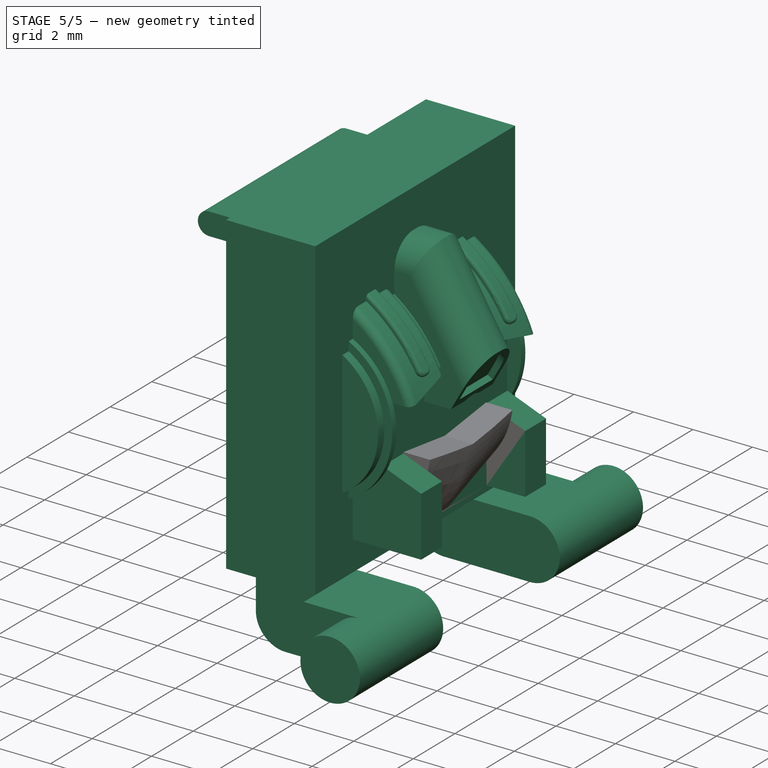
[diagram: stage 5 of 5 — iso view after this stage's code; geometry added in this stage tinted green]
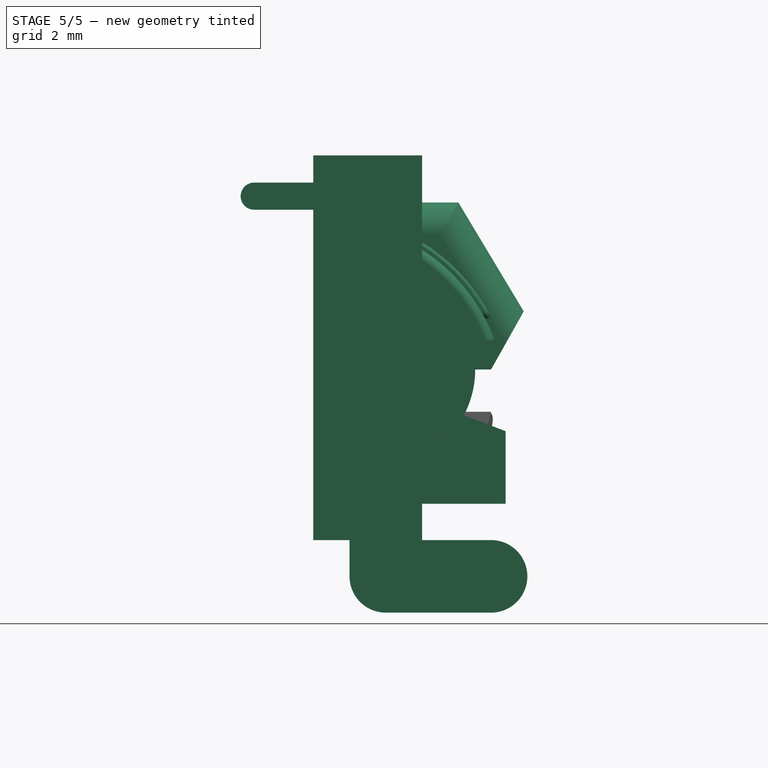
[diagram: stage 5 of 5 — front view after this stage's code; geometry added in this stage tinted green]
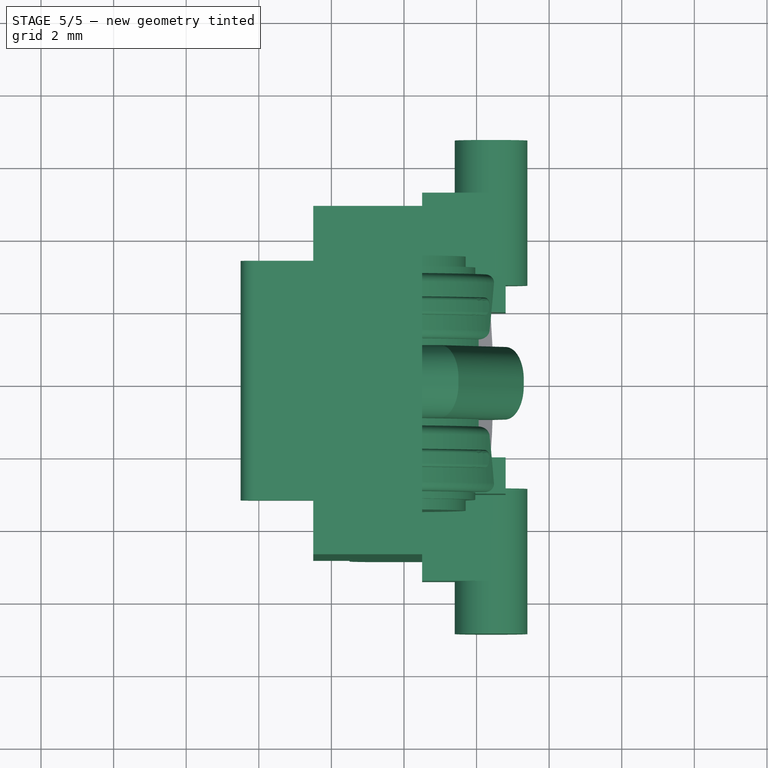
[diagram: stage 5 of 5 — top view after this stage's code; geometry added in this stage tinted green]
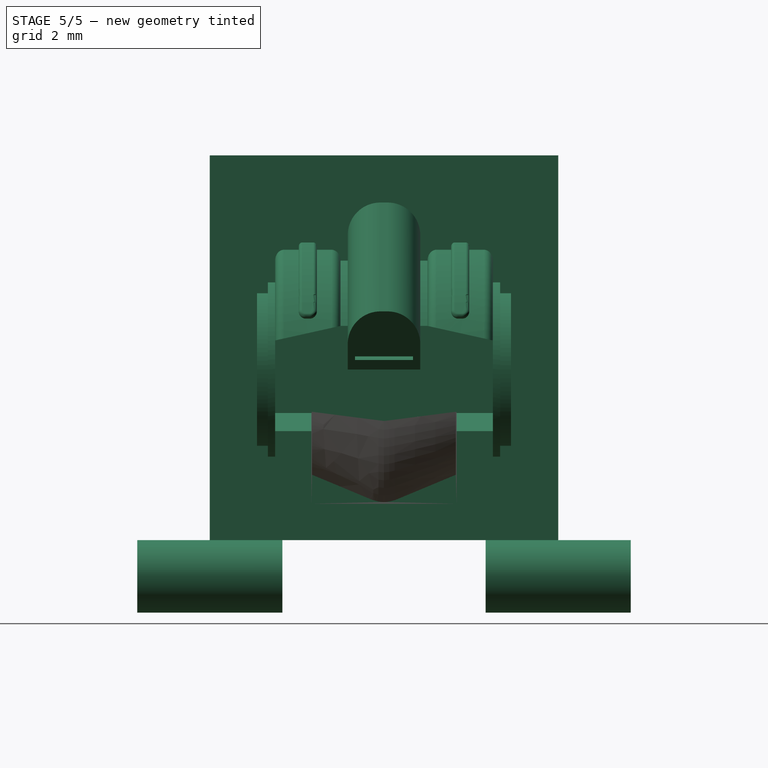
[diagram: stage 5 of 5 — right view after this stage's code; geometry added in this stage tinted green]
FEATURE [PartDesign::Fillet] Fillet001
  Base = -> Pocket197 [Edge158,Edge198,Edge166,Edge202]
  BaseFeature = -> Pocket197
  Radius = 0.2
  Refine = true
  SupportTransform = false
  Suppressed = false
  UseAllEdges = false
FEATURE [PartDesign::Fillet] Fillet002
  Base = -> Fillet001 [Edge109,Edge113,Edge11,Edge66]
  BaseFeature = -> Fillet001
  Radius = 0.1
  Refine = true
  SupportTransform = false
  Suppressed = false
  UseAllEdges = false
FEATURE [Sketcher::SketchObject] Sketch443
  ArcFitTolerance = 1e-06
  AttachmentSupport = -> [Fillet002]
  ExternalGeometry = -> [Fillet002]
  FullyConstrained = true
  MakeInternals = false
  MapMode = 5
  Placement = pos=(3.6,0,0) rot=(0.57735,0.57735,0.57735;2.0944rad)
  sketch-geometry (5):
    g0: LineSegment StartX=5.5 StartY=4 StartZ=0 EndX=5.9 EndY=4 EndZ=0
    g1: LineSegment StartX=5.9 StartY=4 StartZ=0 EndX=5.9 EndY=4.55725 EndZ=0
    g2: LineSegment StartX=5.5 StartY=4 StartZ=0 EndX=5.5 EndY=3 EndZ=0
    g3: LineSegment StartX=5.5 StartY=3 StartZ=0 EndX=7.69974 EndY=3 EndZ=0
    g4: ArcOfCircle CenterX=3.79094 CenterY=0.301177 CenterZ=0 NormalX=0 NormalY=0 NormalZ=1 AngleXU=0 Radius=4.74998 StartAngle=0.604287 EndAngle=1.11072
  constraints (11):
    c: Coincident(g0,g-6)
    c: Coincident(g0,g-5)
    c: Coincident(g1,g0)
    c: Coincident(g1,g-4)
    c: Coincident(g2,g0)
    c: Coincident(g2,g-7)
    c: Coincident(g3,g2)
    c: Coincident(g3,g-7)
    c: Coincident(g4,g-4)
    c: Coincident(g4,g3)
    c: Tangent(g4,g-3)
FEATURE [PartDesign::Pad] Pad262
  BaseFeature = -> Fillet002
  Direction = (1,0,0)
  Length = 3
  Length2 = 10
  Profile = -> Sketch443
  ReferenceAxis = -> Sketch443 [N_Axis]
  Refine = true
  Suppressed = false
  Type = 0
FEATURE [Sketcher::SketchObject] Sketch444
  ArcFitTolerance = 1e-06
  AttachmentSupport = -> [Pad262]
  ExternalGeometry = -> [Pad262]
  FullyConstrained = true
  MakeInternals = false
  MapMode = 5
  Placement = pos=(0,0,5.3) rot=(0,0,1;0rad)
  sketch-geometry (4):
    g0: LineSegment StartX=3.8 StartY=9.3 StartZ=0 EndX=3.8 EndY=4.7 EndZ=0
    g1: LineSegment StartX=3.8 StartY=4.7 StartZ=0 EndX=5.8 EndY=4.7 EndZ=0
    g2: LineSegment StartX=5.8 StartY=4.7 StartZ=0 EndX=5.8 EndY=9.3 EndZ=0
    g3: LineSegment StartX=5.8 StartY=9.3 StartZ=0 EndX=3.8 EndY=9.3 EndZ=0
  constraints (13):
    c: Coincident(g0,g1)
    c: Coincident(g1,g2)
    c: Coincident(g2,g3)
    c: Coincident(g3,g0)
    c: Vertical(g0)
    c: Vertical(g2)
    c: Horizontal(g1)
    c: Horizontal(g3)
    c: DistanceX(g3,g3) = 2
    c: DistanceX(g-3,g-3) = 2.4
    c: DistanceY(g0,g-4) = 1.2
    c: DistanceY(g0,g-5) = 1.3
    c: DistanceX(g-3,g0) = 0.2
FEATURE [PartDesign::Pad] Pad263
  BaseFeature = -> Pad262
  Direction = (0,0,1)
  Length = 2.3
  Length2 = 10
  Profile = -> Sketch444
  ReferenceAxis = -> Sketch444 [N_Axis]
  Refine = true
  Reversed = true
  Suppressed = false
  Type = 0
FEATURE [PartDesign::Pad] Pad264
  BaseFeature = -> Pad263
  Direction = (0,0,1)
  Length = 0.5
  Length2 = 10
  Profile = -> Pad263 [Face78]
  Refine = true
  Suppressed = false
  Type = 0
FEATURE [Sketcher::SketchObject] Sketch445
  ArcFitTolerance = 1e-06
  AttachmentSupport = -> [Pad264]
  ExternalGeometry = -> [Pad264]
  FullyConstrained = true
  MakeInternals = false
  MapMode = 5
  Placement = pos=(5.8,0,0) rot=(0.57735,0.57735,0.57735;2.0944rad)
  sketch-geometry (6):
    g0: LineSegment StartX=9.3 StartY=5.8 StartZ=0 EndX=6.3 EndY=5.8 EndZ=0
    g1: LineSegment StartX=6.3 StartY=5.8 StartZ=0 EndX=9.3 EndY=4 EndZ=0
    g2: LineSegment StartX=9.3 StartY=4 StartZ=0 EndX=9.3 EndY=5.8 EndZ=0
    g3: LineSegment StartX=6.3 StartY=5.8 StartZ=0 EndX=4.7 EndY=4.9 EndZ=0
    g4: LineSegment StartX=4.7 StartY=4.9 StartZ=0 EndX=4.7 EndY=5.8 EndZ=0
    g5: LineSegment StartX=4.7 StartY=5.8 StartZ=0 EndX=6.3 EndY=5.8 EndZ=0
  constraints (15):
    c: Coincident(g0,g-5)
    c: PointOnObject(g0,g-3)
    c: Coincident(g1,g0)
    c: PointOnObject(g1,g-5)
    c: Coincident(g2,g1)
    c: Coincident(g2,g0)
    c: Coincident(g3,g0)
    c: PointOnObject(g3,g-4)
    c: Coincident(g4,g3)
    c: Coincident(g4,g-4)
    c: Coincident(g5,g4)
    c: Coincident(g5,g0)
    c: DistanceY(g-5,g1) = 1
    c: DistanceX(g5,g5) = 1.6
    c: DistanceY(g4,g4) = 0.9
FEATURE [PartDesign::Pocket] Pocket198
  BaseFeature = -> Pad264
  Direction = (-1,0,0)
  Length = 5
  Length2 = 5
  Profile = -> Sketch445
  ReferenceAxis = -> Sketch445 [N_Axis]
  Refine = true
  Suppressed = false
  Type = 0
FEATURE [PartDesign::Fillet] Fillet003
  Base = -> Pocket198 [Edge5,Edge1,Edge3,Edge12]
  BaseFeature = -> Pocket198
  Radius = 0.9
  Refine = true
  SupportTransform = false
  Suppressed = false
  UseAllEdges = false
FEATURE [Sketcher::SketchObject] Sketch446
  ArcFitTolerance = 1e-06
  AttachmentSupport = -> [Fillet003]
  ExternalGeometry = -> [Fillet003]
  FullyConstrained = true
  MakeInternals = false
  MapMode = 5
  Placement = pos=(0,-0.964095,1.71395) rot=(1,0,0;0.512389rad)
  sketch-geometry (12):
    g0: LineSegment StartX=4 StartY=7.29855 StartZ=0 EndX=4 EndY=6.79869 EndZ=0
    g1: LineSegment StartX=5.6 StartY=7.29855 StartZ=0 EndX=5.6 EndY=6.79869 EndZ=0
    g2: LineSegment StartX=5.6 StartY=6.79869 StartZ=0 EndX=4 EndY=6.79869 EndZ=0
    g3: ArcOfCircle CenterX=4.8 CenterY=6.09869 CenterZ=0 NormalX=0 NormalY=0 NormalZ=1 AngleXU=0 Radius=0.5 StartAngle=0.927295 EndAngle=2.2143
    g4: LineSegment [constr] StartX=4 StartY=7.29855 StartZ=0 EndX=5.6 EndY=7.29855 EndZ=0
    g5: ArcOfCircle CenterX=4.9 CenterY=7.29855 CenterZ=0 NormalX=0 NormalY=0 NormalZ=1 AngleXU=0 Radius=0.9 StartAngle=1.68214 EndAngle=3.14159
    g6: ArcOfCircle CenterX=4.7 CenterY=7.29855 CenterZ=0 NormalX=0 NormalY=0 NormalZ=1 AngleXU=0 Radius=0.9 StartAngle=5e-16 EndAngle=1.45946
    g7: LineSegment [constr] StartX=4.7 StartY=7.29855 StartZ=0 EndX=4.9 EndY=7.29855 EndZ=0
    g8: LineSegment [constr] StartX=5.8 StartY=7.29855 StartZ=0 EndX=5.6 EndY=7.29855 EndZ=0
    g9: LineSegment StartX=4.5 StartY=6.49869 StartZ=0 EndX=4.5 EndY=5.99869 EndZ=0
    g10: LineSegment StartX=4.5 StartY=5.99869 StartZ=0 EndX=5.1 EndY=5.99869 EndZ=0
    g11: LineSegment StartX=5.1 StartY=6.49869 StartZ=0 EndX=5.1 EndY=5.99869 EndZ=0
  constraints (37):
    c: Vertical(g0)
    c: Vertical(g1)
    c: Coincident(g2,g1)
    c: Coincident(g2,g0)
    c: Horizontal(g2)
    c: PointOnObject(g3,g-6)
    c: PointOnObject(g3,g-6)
    c: DistanceX(g-6,g-6) = 2
    c: DistanceX(g-6,g3) = 0.7
    c: DistanceX(g3,g-6) = 0.7
    c: Radius(g3) = 0.5
    c: DistanceX(g-6,g0) = 0.2
    c: DistanceX(g1,g-6) = 0.2
    c: Horizontal(g4)
    c: DistanceX(g-6) = 3.8
    c: DistanceY(g-6,g0) = 0.3
    c: Coincident(g5,g0)
    c: Coincident(g1,g4)
    c: Coincident(g4,g0)
    c: Coincident(g7,g6)
    c: Coincident(g7,g5)
    c: Horizontal(g7)
    c: Coincident(g8,g-3)
    c: Coincident(g8,g1)
    c: Tangent(g6,g1) = 1.5708
    c: Coincident(g6,g-5)
    c: Coincident(g6,g5)
    c: DistanceX(g-7,g-7) = 0.2
    c: DistanceX(g-7,g5) = 0.1
    c: Coincident(g9,g3)
    c: Vertical(g9)
    c: Coincident(g10,g9)
    c: Horizontal(g10)
    c: Coincident(g11,g3)
    c: Coincident(g11,g10)
    c: Vertical(g11)
    c: DistanceY(g11,g11) = 0.5
FEATURE [PartDesign::Pocket] Pocket199
  BaseFeature = -> Fillet003
  Direction = (0,0.490261,-0.871576)
  Length = 0.2
  Length2 = 5
  Profile = -> Sketch446
  ReferenceAxis = -> Sketch446 [N_Axis]
  Refine = true
  Suppressed = false
  Type = 0
FEATURE [PartDesign::Boolean] Boolean
  BaseFeature = -> Pocket204
  Group = -> [Body022]
  Refine = true
  Suppressed = false
  Type = 0
  UsePlacement = true
FEATURE [PartDesign::Body] Body023  label="Head"
  AllowCompound = false
  BaseFeature = -> Extrude001
  Group = -> [BaseFeature001,Binder,Sketch454,Binder001,Sketch455,Binder002,Sketch456,Sketch457,Sketch458,Sketch459,Pocket203,Sketch460,Pocket204,Boolean]
  Origin = -> Origin025
  Tip = -> Boolean
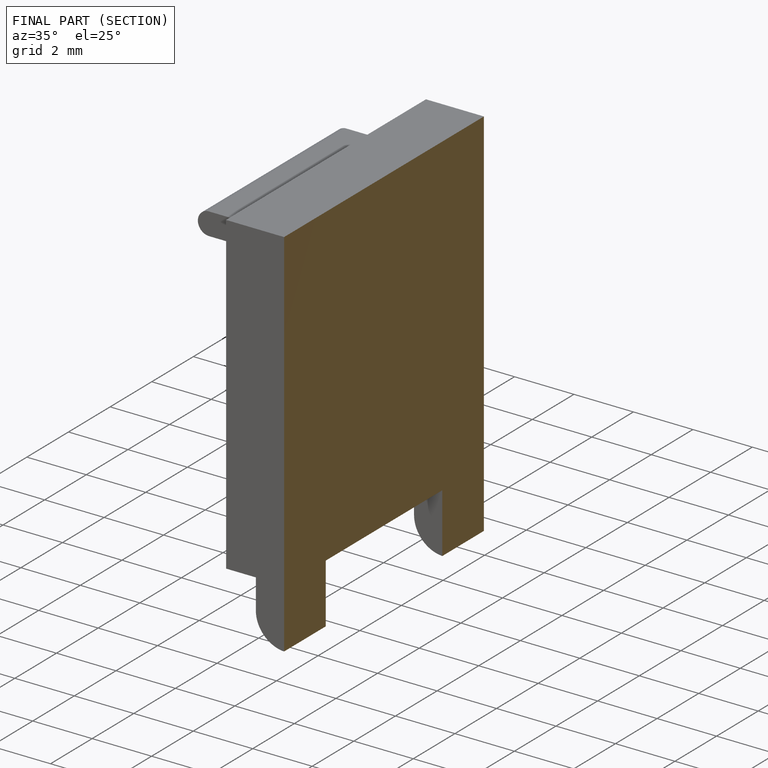
[diagram: finished part — half-section view (interior)]
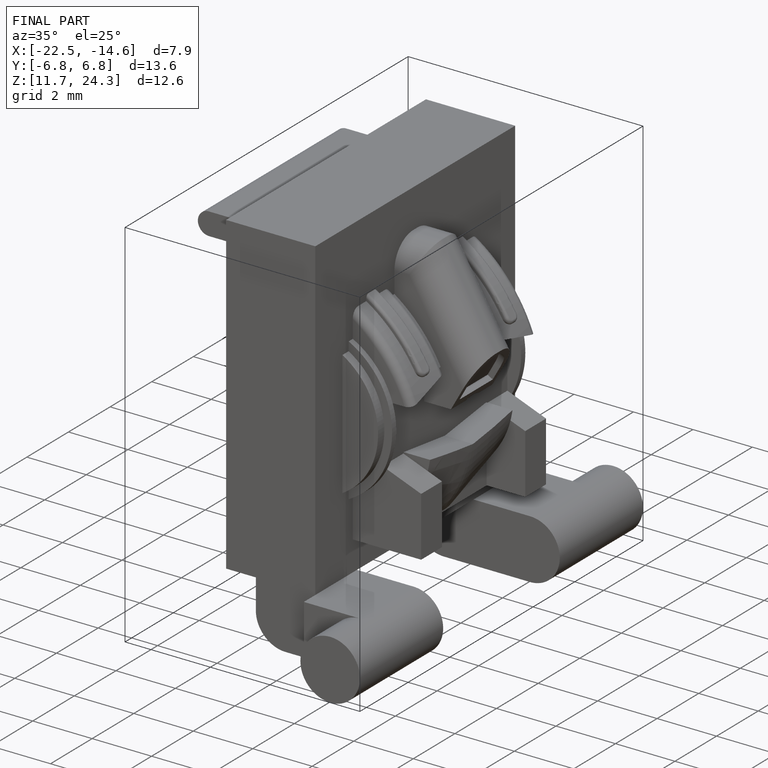
[diagram: finished part — iso view with bounding-box wireframe]
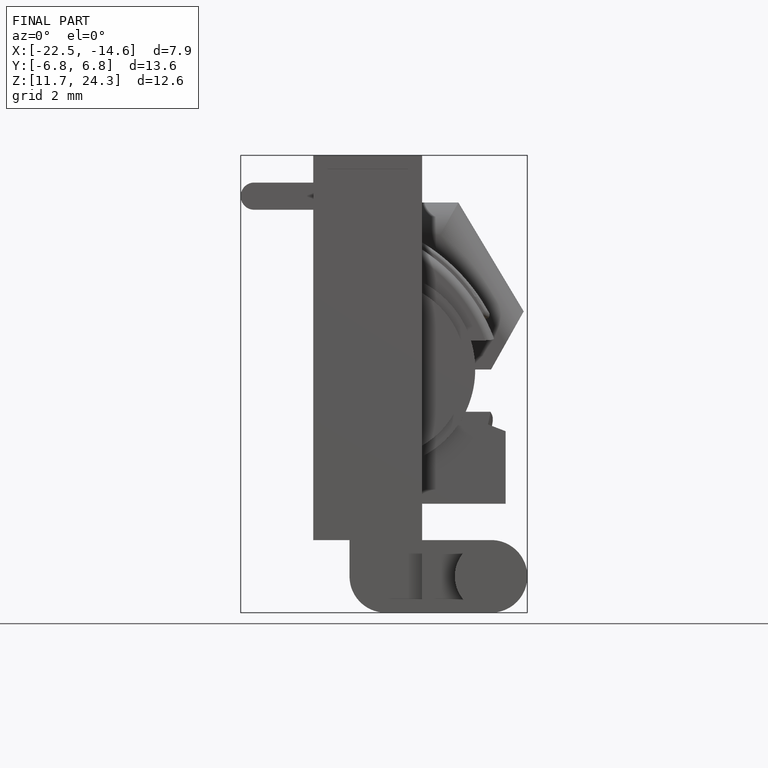
[diagram: finished part — front view with bounding-box wireframe]
